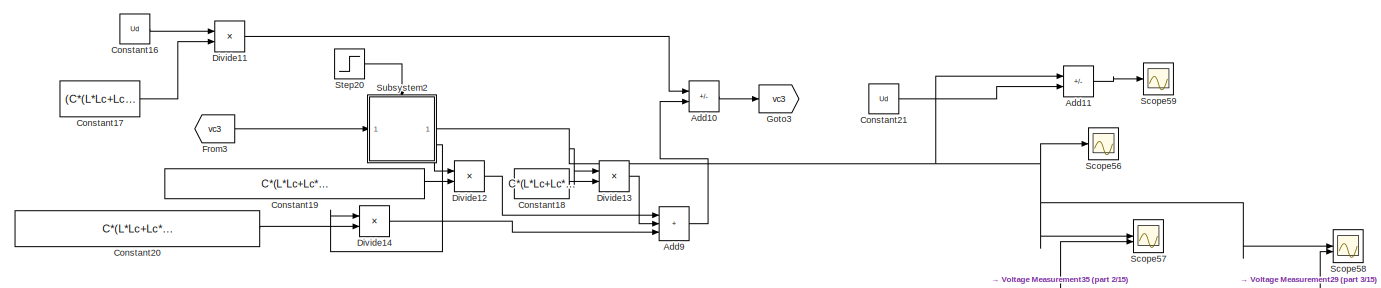
[diagram: root canvas - part 1/15, top left region]
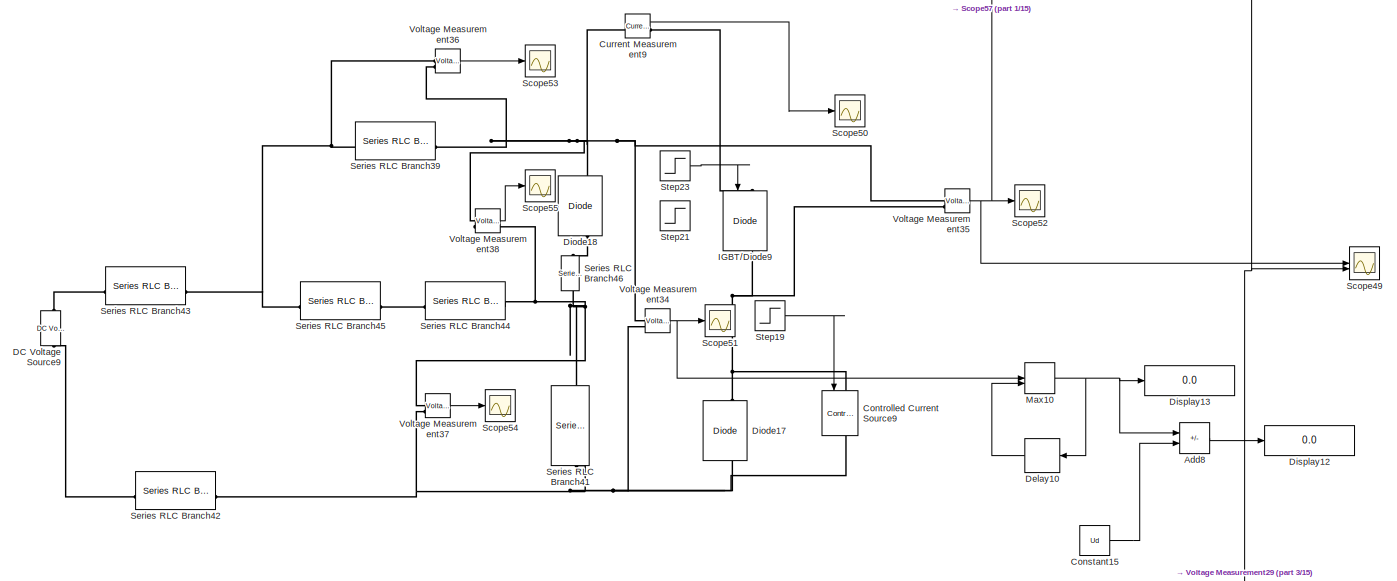
[diagram: root canvas - part 2/15, top left region]
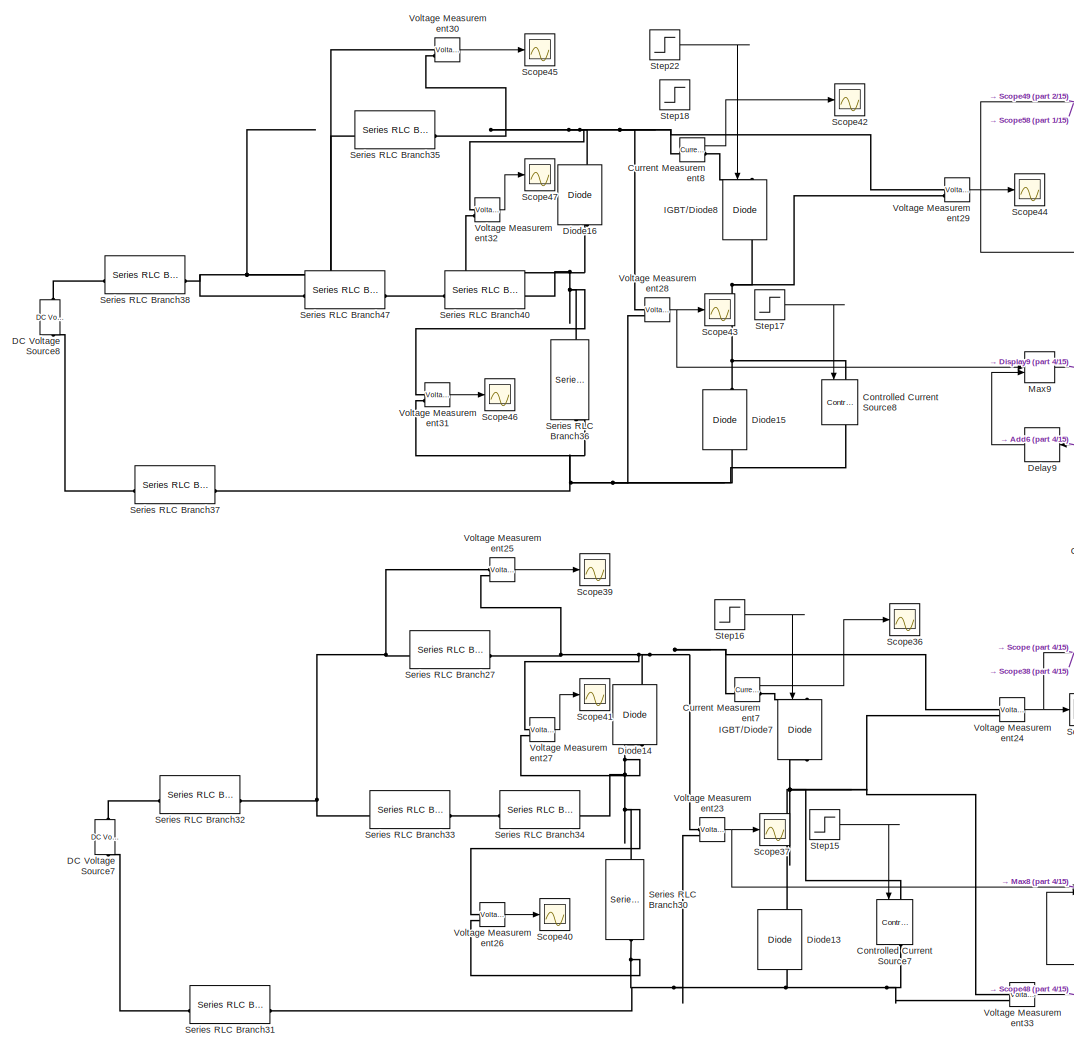
[diagram: root canvas - part 3/15, middle left region]
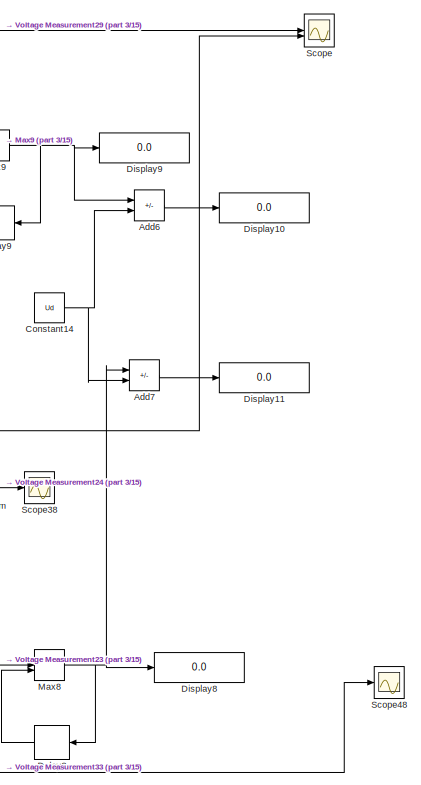
[diagram: root canvas - part 4/15, middle left region]
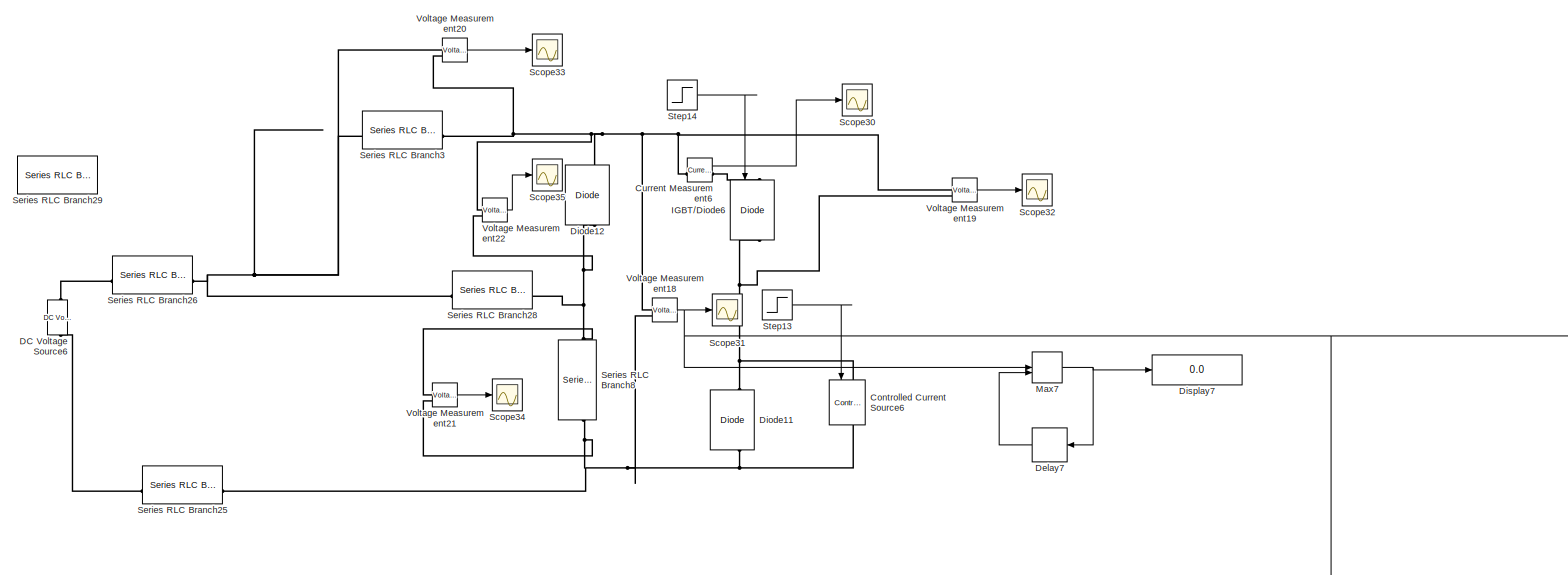
[diagram: root canvas - part 5/15, central region]
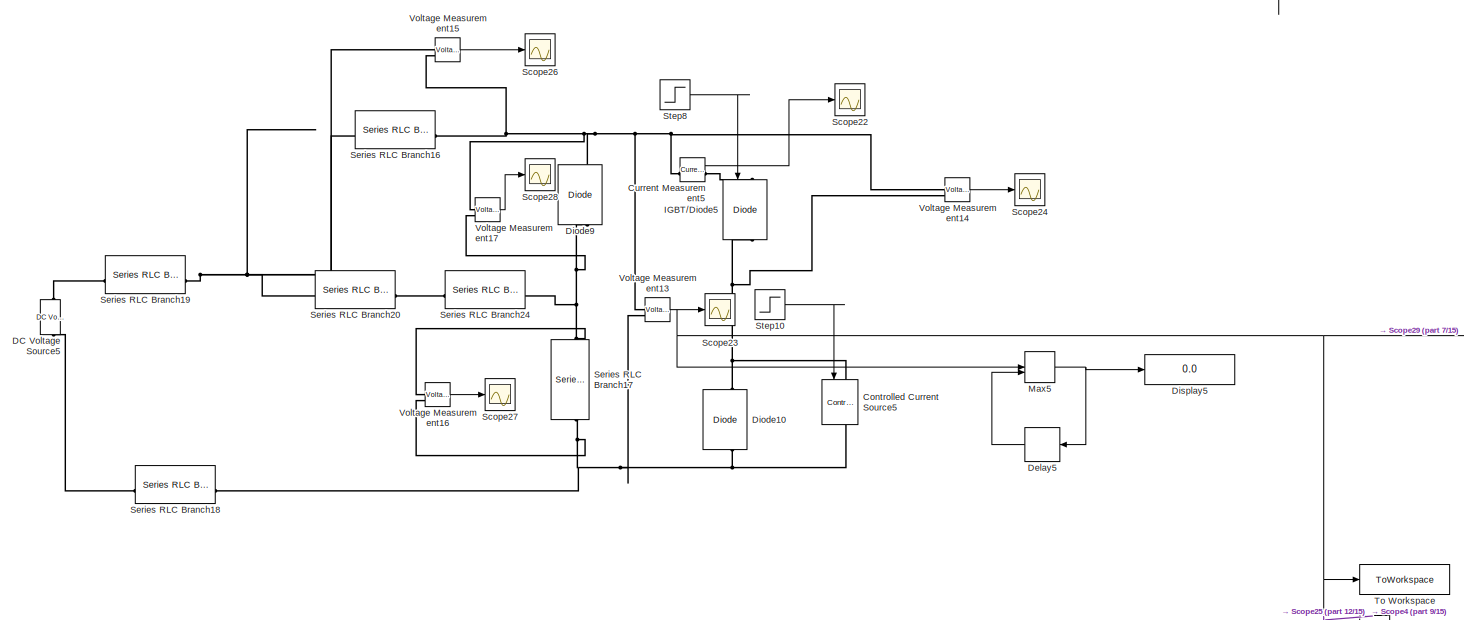
[diagram: root canvas - part 6/15, central region]
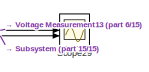
[diagram: root canvas - part 7/15, central region]
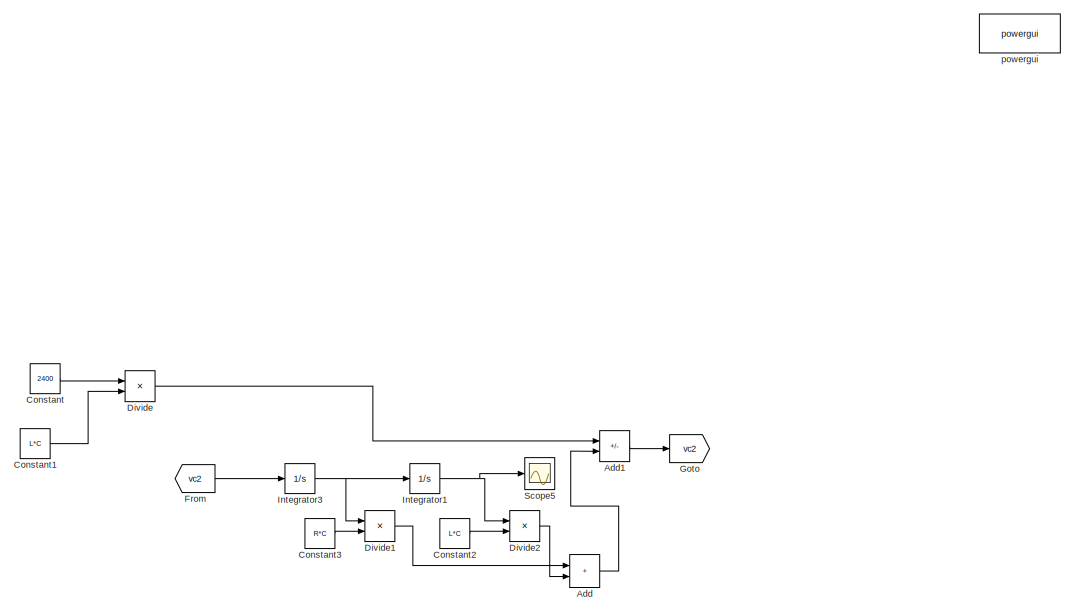
[diagram: root canvas - part 8/15, middle left region]
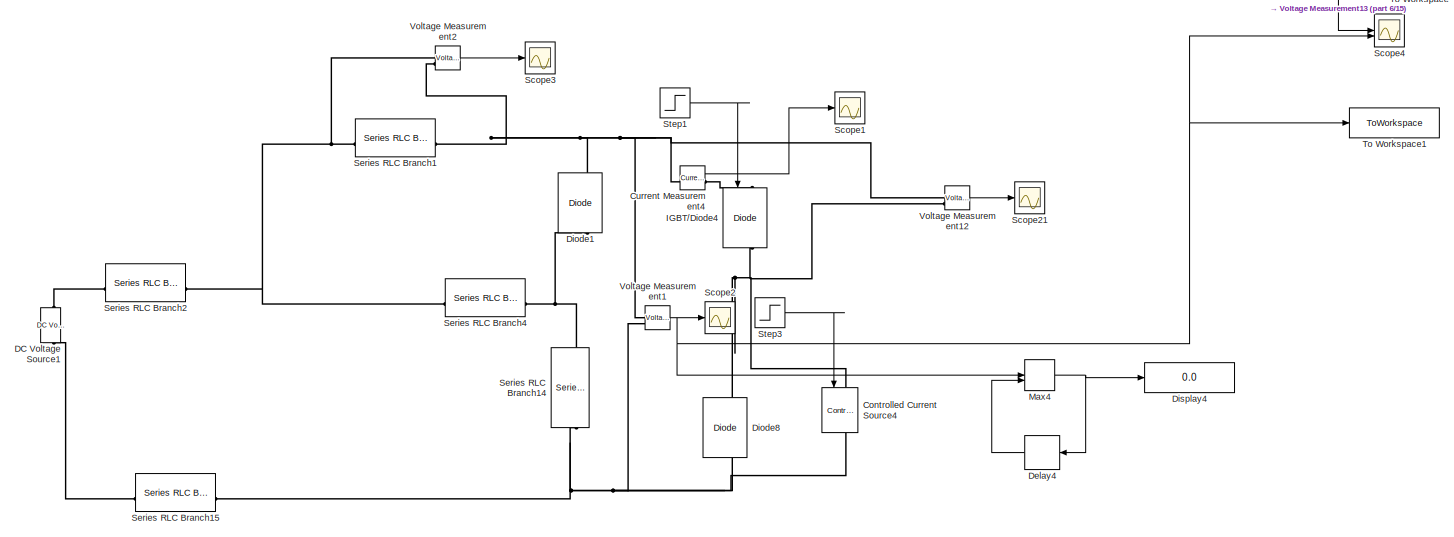
[diagram: root canvas - part 9/15, central region]
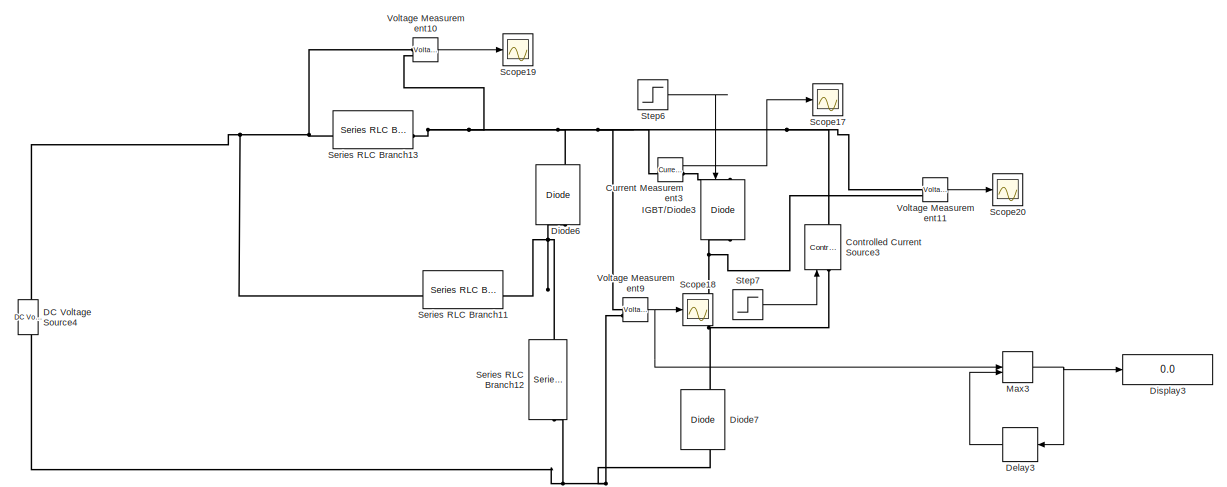
[diagram: root canvas - part 10/15, middle right region]
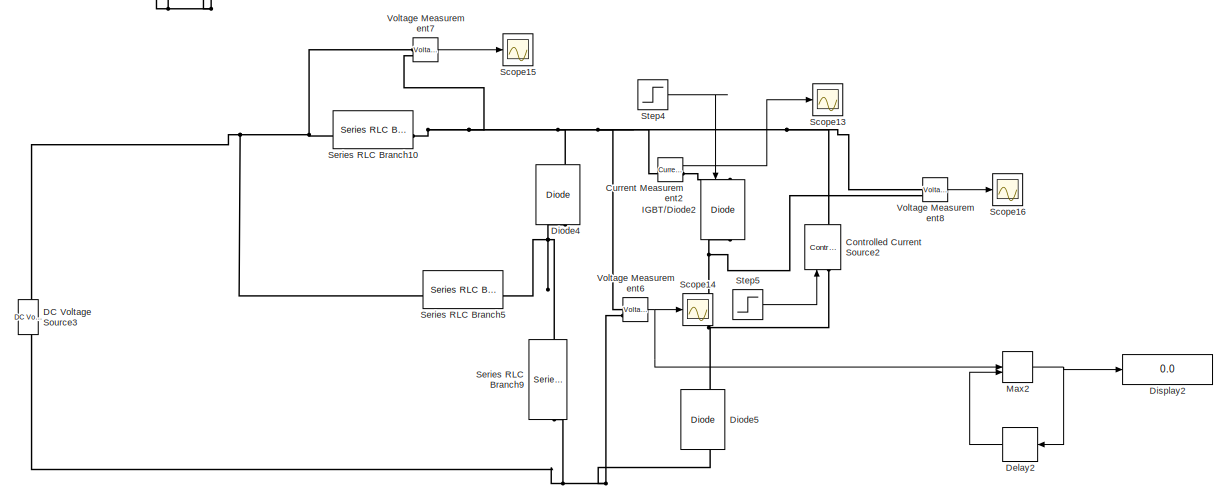
[diagram: root canvas - part 11/15, bottom right region]
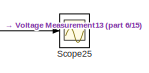
[diagram: root canvas - part 12/15, bottom center region]
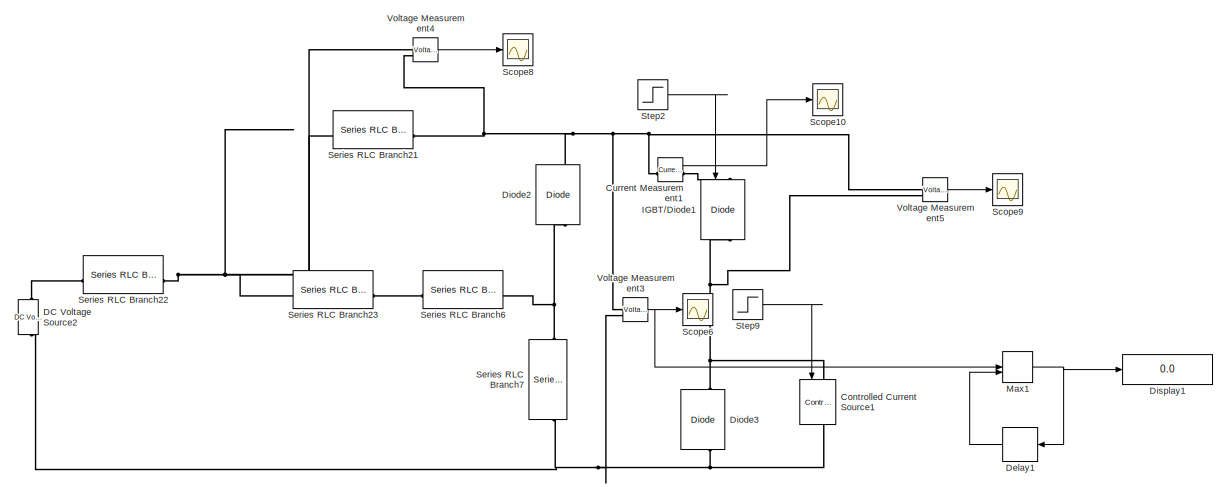
[diagram: root canvas - part 13/15, bottom center region]
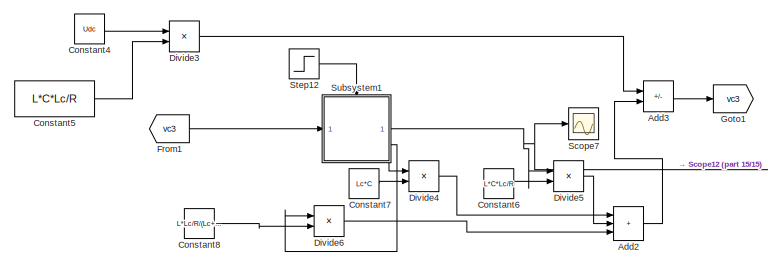
[diagram: root canvas - part 14/15, bottom left region]
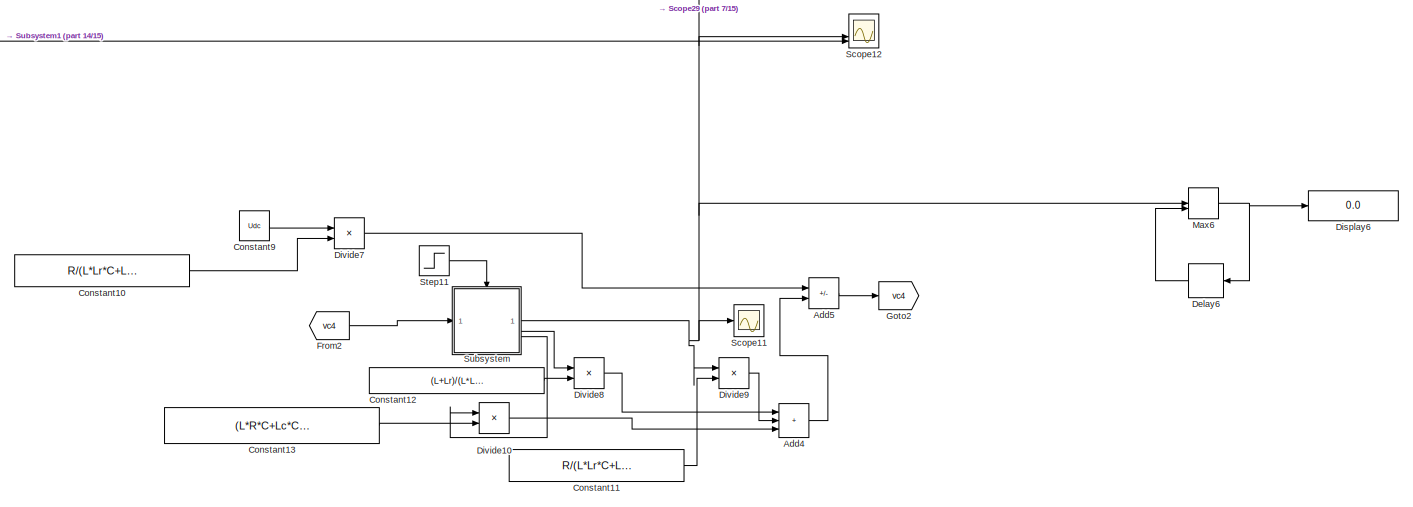
[diagram: root canvas - part 15/15, bottom center region]
MODEL slx_f829e79edec6
KIND model
CONFIG AbsTol = auto
CONFIG EnableMultiTasking = off
CONFIG FixedStep = 1e-9
CONFIG MaxStep = auto
CONFIG MinStep = auto
CONFIG RelTol = 1e-3
CONFIG SampleTimeConstraint = Unconstrained
CONFIG SolverName = FixedStepAuto
CONFIG StartTime = 0
CONFIG StopTime = 0.1e-3
BLOCK [Sum] Add
  Commented = on
  IconShape = rectangular
BLOCK [Sum] Add1
  Commented = on
  IconShape = rectangular
  Inputs = +-
BLOCK [Sum] Add10
  Commented = on
  IconShape = rectangular
  Inputs = +-
BLOCK [Sum] Add11
  Commented = on
  IconShape = rectangular
  Inputs = +-
BLOCK [Sum] Add2
  Commented = on
  IconShape = rectangular
  Inputs = +++
BLOCK [Sum] Add3
  Commented = on
  IconShape = rectangular
  Inputs = +-
BLOCK [Sum] Add4
  Commented = on
  IconShape = rectangular
  Inputs = +++
BLOCK [Sum] Add5
  Commented = on
  IconShape = rectangular
  Inputs = +-
BLOCK [Sum] Add6
  IconShape = rectangular
  Inputs = +-
BLOCK [Sum] Add7
  Commented = on
  IconShape = rectangular
  Inputs = +-
BLOCK [Sum] Add8
  IconShape = rectangular
  Inputs = +-
BLOCK [Sum] Add9
  Commented = on
  IconShape = rectangular
  Inputs = +++
BLOCK [Constant] Constant
  Commented = on
  Value = 2400
BLOCK [Constant] Constant1
  Commented = on
  Value = L*C
BLOCK [Constant] Constant10
  Commented = on
  Value = R/(L*Lr*C+L*Lc*C+Lc*Lr*C)
BLOCK [Constant] Constant11
  Commented = on
  Value = R/(L*Lr*C+L*Lc*C+Lc*Lr*C)
BLOCK [Constant] Constant12
  Commented = on
  Value = (L+Lr)/(L*Lr*C+L*Lc*C+Lc*Lr*C)
BLOCK [Constant] Constant13
  Commented = on
  Value = (L*R*C+Lc*C*R)/(L*Lr*C+L*Lc*C+Lc*Lr*C)
BLOCK [Constant] Constant14
  Value = Ud
BLOCK [Constant] Constant15
  Value = Ud
BLOCK [Constant] Constant16
  Commented = on
  Value = Ud
BLOCK [Constant] Constant17
  Commented = on
  Value = (C*(L*Lc+Lc*Ld+Lc*Lr+Lr*L+Lr*Ld))/R
BLOCK [Constant] Constant18
  Commented = on
  Value = C*(L*Lc+Lc*Ld+Lc*Lr+Lr*L+Lr*Ld)/R
BLOCK [Constant] Constant19
  Commented = on
  Value = C*(L*Lc+Lc*Ld+Lc*Lr+Lr*L+Lr*Ld)/((L+Ld+Lr))
BLOCK [Constant] Constant2
  Commented = on
  Value = L*C
BLOCK [Constant] Constant20
  Commented = on
  Value = C*(L*Lc+Lc*Ld+Lc*Lr+Lr*L+Lr*Ld)/(C*R*(Lc+L+Ld))
BLOCK [Constant] Constant21
  Commented = on
  Value = Ud
BLOCK [Constant] Constant3
  Commented = on
  Value = R*C
BLOCK [Constant] Constant4
  Commented = on
  Value = Udc
BLOCK [Constant] Constant5
  Commented = on
  Value = L*C*Lc/R
BLOCK [Constant] Constant6
  Commented = on
  Value = L*C*Lc/R
BLOCK [Constant] Constant7
  Commented = on
  Value = Lc*C
BLOCK [Constant] Constant8
  Commented = on
  Value = L*Lc/R/(Lc+L)
BLOCK [Constant] Constant9
  Commented = on
  Value = Udc
BLOCK [Reference] Controlled Current Source1  REF=spsControlledCurrentSourceLib/Controlled Current Source
  Commented = on
  LibrarySourceBlock = sps_lib/Sources/Controlled Current Source
  NameLocation = top
  SourceBlock = spsControlledCurrentSourceLib/Controlled Current Source
  SourceType = Controlled Current Source
BLOCK [Reference] Controlled Current Source2  REF=spsControlledCurrentSourceLib/Controlled Current Source
  Commented = on
  LibrarySourceBlock = sps_lib/Sources/Controlled Current Source
  SourceBlock = spsControlledCurrentSourceLib/Controlled Current Source
  SourceType = Controlled Current Source
BLOCK [Reference] Controlled Current Source3  REF=spsControlledCurrentSourceLib/Controlled Current Source
  Commented = on
  LibrarySourceBlock = sps_lib/Sources/Controlled Current Source
  SourceBlock = spsControlledCurrentSourceLib/Controlled Current Source
  SourceType = Controlled Current Source
BLOCK [Reference] Controlled Current Source4  REF=spsControlledCurrentSourceLib/Controlled Current Source
  Commented = on
  LibrarySourceBlock = sps_lib/Sources/Controlled Current Source
  NameLocation = top
  SourceBlock = spsControlledCurrentSourceLib/Controlled Current Source
  SourceType = Controlled Current Source
BLOCK [Reference] Controlled Current Source5  REF=spsControlledCurrentSourceLib/Controlled Current Source
  Commented = on
  LibrarySourceBlock = sps_lib/Sources/Controlled Current Source
  NameLocation = top
  SourceBlock = spsControlledCurrentSourceLib/Controlled Current Source
  SourceType = Controlled Current Source
BLOCK [Reference] Controlled Current Source6  REF=spsControlledCurrentSourceLib/Controlled Current Source
  Commented = on
  LibrarySourceBlock = sps_lib/Sources/Controlled Current Source
  NameLocation = top
  SourceBlock = spsControlledCurrentSourceLib/Controlled Current Source
  SourceType = Controlled Current Source
BLOCK [Reference] Controlled Current Source7  REF=spsControlledCurrentSourceLib/Controlled Current Source
  Commented = on
  LibrarySourceBlock = sps_lib/Sources/Controlled Current Source
  NameLocation = top
  SourceBlock = spsControlledCurrentSourceLib/Controlled Current Source
  SourceType = Controlled Current Source
BLOCK [Reference] Controlled Current Source8  REF=spsControlledCurrentSourceLib/Controlled Current Source
  LibrarySourceBlock = sps_lib/Sources/Controlled Current Source
  NameLocation = top
  SourceBlock = spsControlledCurrentSourceLib/Controlled Current Source
  SourceType = Controlled Current Source
BLOCK [Reference] Controlled Current Source9  REF=spsControlledCurrentSourceLib/Controlled Current Source
  LibrarySourceBlock = sps_lib/Sources/Controlled Current Source
  NameLocation = top
  SourceBlock = spsControlledCurrentSourceLib/Controlled Current Source
  SourceType = Controlled Current Source
BLOCK [Reference] Current Measurement1  REF=spsCurrentMeasurementLib/Current Measurement
  Commented = on
  LibrarySourceBlock = sps_lib/Sensors and Measurements/Current Measurement
  SourceBlock = spsCurrentMeasurementLib/Current Measurement
  SourceType = Current Measurement
  UserDataPersistent = on
BLOCK [Reference] Current Measurement2  REF=spsCurrentMeasurementLib/Current Measurement
  Commented = on
  LibrarySourceBlock = sps_lib/Sensors and Measurements/Current Measurement
  SourceBlock = spsCurrentMeasurementLib/Current Measurement
  SourceType = Current Measurement
  UserDataPersistent = on
BLOCK [Reference] Current Measurement3  REF=spsCurrentMeasurementLib/Current Measurement
  Commented = on
  LibrarySourceBlock = sps_lib/Sensors and Measurements/Current Measurement
  SourceBlock = spsCurrentMeasurementLib/Current Measurement
  SourceType = Current Measurement
  UserDataPersistent = on
BLOCK [Reference] Current Measurement4  REF=spsCurrentMeasurementLib/Current Measurement
  Commented = on
  LibrarySourceBlock = sps_lib/Sensors and Measurements/Current Measurement
  SourceBlock = spsCurrentMeasurementLib/Current Measurement
  SourceType = Current Measurement
  UserDataPersistent = on
BLOCK [Reference] Current Measurement5  REF=spsCurrentMeasurementLib/Current Measurement
  Commented = on
  LibrarySourceBlock = sps_lib/Sensors and Measurements/Current Measurement
  SourceBlock = spsCurrentMeasurementLib/Current Measurement
  SourceType = Current Measurement
  UserDataPersistent = on
BLOCK [Reference] Current Measurement6  REF=spsCurrentMeasurementLib/Current Measurement
  Commented = on
  LibrarySourceBlock = sps_lib/Sensors and Measurements/Current Measurement
  SourceBlock = spsCurrentMeasurementLib/Current Measurement
  SourceType = Current Measurement
  UserDataPersistent = on
BLOCK [Reference] Current Measurement7  REF=spsCurrentMeasurementLib/Current Measurement
  Commented = on
  LibrarySourceBlock = sps_lib/Sensors and Measurements/Current Measurement
  SourceBlock = spsCurrentMeasurementLib/Current Measurement
  SourceType = Current Measurement
  UserDataPersistent = on
BLOCK [Reference] Current Measurement8  REF=spsCurrentMeasurementLib/Current Measurement
  LibrarySourceBlock = sps_lib/Sensors and Measurements/Current Measurement
  SourceBlock = spsCurrentMeasurementLib/Current Measurement
  SourceType = Current Measurement
  UserDataPersistent = on
BLOCK [Reference] Current Measurement9  REF=spsCurrentMeasurementLib/Current Measurement
  LibrarySourceBlock = sps_lib/Sensors and Measurements/Current Measurement
  SourceBlock = spsCurrentMeasurementLib/Current Measurement
  SourceType = Current Measurement
  UserDataPersistent = on
BLOCK [Reference] DC Voltage Source1  REF=spsDCVoltageSourceLib/DC Voltage Source
  Commented = on
  LibrarySourceBlock = sps_lib/Sources/DC Voltage Source
  SourceBlock = spsDCVoltageSourceLib/DC Voltage Source
  SourceType = DC Voltage Source
BLOCK [Reference] DC Voltage Source2  REF=spsDCVoltageSourceLib/DC Voltage Source
  Commented = on
  LibrarySourceBlock = sps_lib/Sources/DC Voltage Source
  SourceBlock = spsDCVoltageSourceLib/DC Voltage Source
  SourceType = DC Voltage Source
BLOCK [Reference] DC Voltage Source3  REF=spsDCVoltageSourceLib/DC Voltage Source
  Commented = on
  LibrarySourceBlock = sps_lib/Sources/DC Voltage Source
  SourceBlock = spsDCVoltageSourceLib/DC Voltage Source
  SourceType = DC Voltage Source
BLOCK [Reference] DC Voltage Source4  REF=spsDCVoltageSourceLib/DC Voltage Source
  Commented = on
  LibrarySourceBlock = sps_lib/Sources/DC Voltage Source
  SourceBlock = spsDCVoltageSourceLib/DC Voltage Source
  SourceType = DC Voltage Source
BLOCK [Reference] DC Voltage Source5  REF=spsDCVoltageSourceLib/DC Voltage Source
  Commented = on
  LibrarySourceBlock = sps_lib/Sources/DC Voltage Source
  SourceBlock = spsDCVoltageSourceLib/DC Voltage Source
  SourceType = DC Voltage Source
BLOCK [Reference] DC Voltage Source6  REF=spsDCVoltageSourceLib/DC Voltage Source
  Commented = on
  LibrarySourceBlock = sps_lib/Sources/DC Voltage Source
  SourceBlock = spsDCVoltageSourceLib/DC Voltage Source
  SourceType = DC Voltage Source
BLOCK [Reference] DC Voltage Source7  REF=spsDCVoltageSourceLib/DC Voltage Source
  Commented = on
  LibrarySourceBlock = sps_lib/Sources/DC Voltage Source
  SourceBlock = spsDCVoltageSourceLib/DC Voltage Source
  SourceType = DC Voltage Source
BLOCK [Reference] DC Voltage Source8  REF=spsDCVoltageSourceLib/DC Voltage Source
  LibrarySourceBlock = sps_lib/Sources/DC Voltage Source
  SourceBlock = spsDCVoltageSourceLib/DC Voltage Source
  SourceType = DC Voltage Source
BLOCK [Reference] DC Voltage Source9  REF=spsDCVoltageSourceLib/DC Voltage Source
  LibrarySourceBlock = sps_lib/Sources/DC Voltage Source
  SourceBlock = spsDCVoltageSourceLib/DC Voltage Source
  SourceType = DC Voltage Source
BLOCK [Delay] Delay1
  Commented = on
  DelayLength = 1
  InputPortMap = u0
  NameLocation = top
BLOCK [Delay] Delay10
  DelayLength = 1
  InputPortMap = u0
  NameLocation = top
BLOCK [Delay] Delay2
  Commented = on
  DelayLength = 1
  InputPortMap = u0
  NameLocation = top
BLOCK [Delay] Delay3
  Commented = on
  DelayLength = 1
  InputPortMap = u0
  NameLocation = top
BLOCK [Delay] Delay4
  Commented = on
  DelayLength = 1
  InputPortMap = u0
  NameLocation = top
BLOCK [Delay] Delay5
  Commented = on
  DelayLength = 1
  InputPortMap = u0
  NameLocation = top
BLOCK [Delay] Delay6
  Commented = on
  DelayLength = 1
  InputPortMap = u0
  NameLocation = top
BLOCK [Delay] Delay7
  Commented = on
  DelayLength = 1
  InputPortMap = u0
  NameLocation = top
BLOCK [Delay] Delay8
  Commented = on
  DelayLength = 1
  InputPortMap = u0
  NameLocation = top
BLOCK [Delay] Delay9
  DelayLength = 1
  InputPortMap = u0
  NameLocation = top
BLOCK [Reference] Diode1  REF=spsDiodeLib/Diode
  Commented = on
  LibrarySourceBlock = sps_lib/Power Electronics/Diode
  NameLocation = left
  SourceBlock = spsDiodeLib/Diode
  SourceType = Diode
BLOCK [Reference] Diode10  REF=spsDiodeLib/Diode
  Commented = on
  LibrarySourceBlock = sps_lib/Power Electronics/Diode
  NameLocation = right
  SourceBlock = spsDiodeLib/Diode
  SourceType = Diode
BLOCK [Reference] Diode11  REF=spsDiodeLib/Diode
  Commented = on
  LibrarySourceBlock = sps_lib/Power Electronics/Diode
  NameLocation = right
  SourceBlock = spsDiodeLib/Diode
  SourceType = Diode
BLOCK [Reference] Diode12  REF=spsDiodeLib/Diode
  Commented = on
  LibrarySourceBlock = sps_lib/Power Electronics/Diode
  NameLocation = left
  SourceBlock = spsDiodeLib/Diode
  SourceType = Diode
BLOCK [Reference] Diode13  REF=spsDiodeLib/Diode
  Commented = on
  LibrarySourceBlock = sps_lib/Power Electronics/Diode
  NameLocation = right
  SourceBlock = spsDiodeLib/Diode
  SourceType = Diode
BLOCK [Reference] Diode14  REF=spsDiodeLib/Diode
  Commented = on
  LibrarySourceBlock = sps_lib/Power Electronics/Diode
  NameLocation = left
  SourceBlock = spsDiodeLib/Diode
  SourceType = Diode
BLOCK [Reference] Diode15  REF=spsDiodeLib/Diode
  LibrarySourceBlock = sps_lib/Power Electronics/Diode
  NameLocation = right
  SourceBlock = spsDiodeLib/Diode
  SourceType = Diode
BLOCK [Reference] Diode16  REF=spsDiodeLib/Diode
  LibrarySourceBlock = sps_lib/Power Electronics/Diode
  NameLocation = left
  SourceBlock = spsDiodeLib/Diode
  SourceType = Diode
BLOCK [Reference] Diode17  REF=spsDiodeLib/Diode
  LibrarySourceBlock = sps_lib/Power Electronics/Diode
  NameLocation = right
  SourceBlock = spsDiodeLib/Diode
  SourceType = Diode
BLOCK [Reference] Diode18  REF=spsDiodeLib/Diode
  LibrarySourceBlock = sps_lib/Power Electronics/Diode
  NameLocation = left
  SourceBlock = spsDiodeLib/Diode
  SourceType = Diode
BLOCK [Reference] Diode2  REF=spsDiodeLib/Diode
  Commented = on
  LibrarySourceBlock = sps_lib/Power Electronics/Diode
  NameLocation = left
  SourceBlock = spsDiodeLib/Diode
  SourceType = Diode
BLOCK [Reference] Diode3  REF=spsDiodeLib/Diode
  Commented = on
  LibrarySourceBlock = sps_lib/Power Electronics/Diode
  NameLocation = right
  SourceBlock = spsDiodeLib/Diode
  SourceType = Diode
BLOCK [Reference] Diode4  REF=spsDiodeLib/Diode
  Commented = on
  LibrarySourceBlock = sps_lib/Power Electronics/Diode
  NameLocation = left
  SourceBlock = spsDiodeLib/Diode
  SourceType = Diode
BLOCK [Reference] Diode5  REF=spsDiodeLib/Diode
  Commented = on
  LibrarySourceBlock = sps_lib/Power Electronics/Diode
  NameLocation = right
  SourceBlock = spsDiodeLib/Diode
  SourceType = Diode
BLOCK [Reference] Diode6  REF=spsDiodeLib/Diode
  Commented = on
  LibrarySourceBlock = sps_lib/Power Electronics/Diode
  NameLocation = left
  SourceBlock = spsDiodeLib/Diode
  SourceType = Diode
BLOCK [Reference] Diode7  REF=spsDiodeLib/Diode
  Commented = on
  LibrarySourceBlock = sps_lib/Power Electronics/Diode
  NameLocation = right
  SourceBlock = spsDiodeLib/Diode
  SourceType = Diode
BLOCK [Reference] Diode8  REF=spsDiodeLib/Diode
  Commented = on
  LibrarySourceBlock = sps_lib/Power Electronics/Diode
  NameLocation = right
  SourceBlock = spsDiodeLib/Diode
  SourceType = Diode
BLOCK [Reference] Diode9  REF=spsDiodeLib/Diode
  Commented = on
  LibrarySourceBlock = sps_lib/Power Electronics/Diode
  NameLocation = left
  SourceBlock = spsDiodeLib/Diode
  SourceType = Diode
BLOCK [Display] Display1
  Commented = on
  Decimation = 1
BLOCK [Display] Display10
  Decimation = 1
BLOCK [Display] Display11
  Commented = on
  Decimation = 1
BLOCK [Display] Display12
  Decimation = 1
BLOCK [Display] Display13
  Decimation = 1
BLOCK [Display] Display2
  Commented = on
  Decimation = 1
BLOCK [Display] Display3
  Commented = on
  Decimation = 1
BLOCK [Display] Display4
  Commented = on
  Decimation = 1
BLOCK [Display] Display5
  Commented = on
  Decimation = 1
BLOCK [Display] Display6
  Commented = on
  Decimation = 1
BLOCK [Display] Display7
  Commented = on
  Decimation = 1
BLOCK [Display] Display8
  Commented = on
  Decimation = 1
BLOCK [Display] Display9
  Decimation = 1
BLOCK [Product] Divide
  Commented = on
  Inputs = */
BLOCK [Product] Divide1
  Commented = on
  Inputs = */
BLOCK [Product] Divide10
  Commented = on
  Inputs = **
BLOCK [Product] Divide11
  Commented = on
  Inputs = */
BLOCK [Product] Divide12
  Commented = on
  Inputs = */
BLOCK [Product] Divide13
  Commented = on
  Inputs = */
BLOCK [Product] Divide14
  Commented = on
  Inputs = */
BLOCK [Product] Divide2
  Commented = on
  Inputs = */
BLOCK [Product] Divide3
  Commented = on
  Inputs = */
BLOCK [Product] Divide4
  Commented = on
  Inputs = */
BLOCK [Product] Divide5
  Commented = on
  Inputs = */
BLOCK [Product] Divide6
  Commented = on
  Inputs = */
BLOCK [Product] Divide7
  Commented = on
  Inputs = **
BLOCK [Product] Divide8
  Commented = on
  Inputs = **
BLOCK [Product] Divide9
  Commented = on
  Inputs = **
BLOCK [From] From
  Commented = on
  GotoTag = vc2
BLOCK [From] From1
  Commented = on
  GotoTag = vc3
BLOCK [From] From2
  Commented = on
  GotoTag = vc4
BLOCK [From] From3
  Commented = on
  GotoTag = vc3
BLOCK [Goto] Goto
  Commented = on
  GotoTag = vc2
BLOCK [Goto] Goto1
  Commented = on
  GotoTag = vc3
BLOCK [Goto] Goto2
  Commented = on
  GotoTag = vc4
BLOCK [Goto] Goto3
  Commented = on
  GotoTag = vc3
BLOCK [Reference] IGBT//Diode1  REF=spsIGBTDiodeLib/IGBT//Diode
  Commented = on
  LibrarySourceBlock = sps_lib/Power Electronics/IGBT//Diode
  NameLocation = left
  SourceBlock = spsIGBTDiodeLib/IGBT//Diode
  SourceType = IGBT/Diode
BLOCK [Reference] IGBT//Diode2  REF=spsIGBTDiodeLib/IGBT//Diode
  Commented = on
  LibrarySourceBlock = sps_lib/Power Electronics/IGBT//Diode
  NameLocation = left
  SourceBlock = spsIGBTDiodeLib/IGBT//Diode
  SourceType = IGBT/Diode
BLOCK [Reference] IGBT//Diode3  REF=spsIGBTDiodeLib/IGBT//Diode
  Commented = on
  LibrarySourceBlock = sps_lib/Power Electronics/IGBT//Diode
  NameLocation = left
  SourceBlock = spsIGBTDiodeLib/IGBT//Diode
  SourceType = IGBT/Diode
BLOCK [Reference] IGBT//Diode4  REF=spsIGBTDiodeLib/IGBT//Diode
  Commented = on
  LibrarySourceBlock = sps_lib/Power Electronics/IGBT//Diode
  NameLocation = left
  SourceBlock = spsIGBTDiodeLib/IGBT//Diode
  SourceType = IGBT/Diode
BLOCK [Reference] IGBT//Diode5  REF=spsIGBTDiodeLib/IGBT//Diode
  Commented = on
  LibrarySourceBlock = sps_lib/Power Electronics/IGBT//Diode
  NameLocation = left
  SourceBlock = spsIGBTDiodeLib/IGBT//Diode
  SourceType = IGBT/Diode
BLOCK [Reference] IGBT//Diode6  REF=spsIGBTDiodeLib/IGBT//Diode
  Commented = on
  LibrarySourceBlock = sps_lib/Power Electronics/IGBT//Diode
  NameLocation = left
  SourceBlock = spsIGBTDiodeLib/IGBT//Diode
  SourceType = IGBT/Diode
BLOCK [Reference] IGBT//Diode7  REF=spsIGBTDiodeLib/IGBT//Diode
  Commented = on
  LibrarySourceBlock = sps_lib/Power Electronics/IGBT//Diode
  NameLocation = left
  SourceBlock = spsIGBTDiodeLib/IGBT//Diode
  SourceType = IGBT/Diode
BLOCK [Reference] IGBT//Diode8  REF=spsIGBTDiodeLib/IGBT//Diode
  LibrarySourceBlock = sps_lib/Power Electronics/IGBT//Diode
  NameLocation = left
  SourceBlock = spsIGBTDiodeLib/IGBT//Diode
  SourceType = IGBT/Diode
BLOCK [Reference] IGBT//Diode9  REF=spsIGBTDiodeLib/IGBT//Diode
  LibrarySourceBlock = sps_lib/Power Electronics/IGBT//Diode
  NameLocation = left
  SourceBlock = spsIGBTDiodeLib/IGBT//Diode
  SourceType = IGBT/Diode
BLOCK [Integrator] Integrator1
  Commented = on
  InitialCondition = 2400
BLOCK [Integrator] Integrator3
  Commented = on
  InitialCondition = 1750/C
BLOCK [MinMax] Max1
  Commented = on
  Function = max
  Inputs = 2
BLOCK [MinMax] Max10
  Function = max
  Inputs = 2
BLOCK [MinMax] Max2
  Commented = on
  Function = max
  Inputs = 2
BLOCK [MinMax] Max3
  Commented = on
  Function = max
  Inputs = 2
BLOCK [MinMax] Max4
  Commented = on
  Function = max
  Inputs = 2
BLOCK [MinMax] Max5
  Commented = on
  Function = max
  Inputs = 2
BLOCK [MinMax] Max6
  Commented = on
  Function = max
  Inputs = 2
BLOCK [MinMax] Max7
  Commented = on
  Function = max
  Inputs = 2
BLOCK [MinMax] Max8
  Commented = on
  Function = max
  Inputs = 2
BLOCK [MinMax] Max9
  Function = max
  Inputs = 2
BLOCK [Scope] Scope
  Floating = off
  NumInputPorts = 2
  ScopeSpecificationString = Simulink.scopes.TimeScopeBlockCfg('CurrentConfiguration', extmgr.ConfigurationSet(extmgr.Configuration('Core','General UI',true),extmgr.Configuration('Core','Source UI',true),extmgr.Configuration('Sources','WiredSimulink',true,'DataLoggingVariableName','ScopeData14'),extmgr.Configuration('Visuals','Time Domain',true,'SerializedDisplays',{struct('MinYLimReal','-400.57106','MaxYLimReal','3605.16082'...<+2626ch>
BLOCK [Scope] Scope1
  Commented = on
  Floating = off
  NumInputPorts = 1
  ScopeSpecificationString = Simulink.scopes.TimeScopeBlockCfg('CurrentConfiguration', extmgr.ConfigurationSet(extmgr.Configuration('Core','General UI',true),extmgr.Configuration('Core','Source UI',true),extmgr.Configuration('Sources','WiredSimulink',true,'DataLoggingVariableName','ScopeData9'),extmgr.Configuration('Visuals','Time Domain',true,'SerializedDisplays',{struct('MinYLimReal','-218.72792','MaxYLimReal','1968.7915','...<+1767ch>
BLOCK [Scope] Scope10
  Commented = on
  Floating = off
  NumInputPorts = 1
  ScopeSpecificationString = Simulink.scopes.TimeScopeBlockCfg('CurrentConfiguration', extmgr.ConfigurationSet(extmgr.Configuration('Core','General UI',true),extmgr.Configuration('Core','Source UI',true),extmgr.Configuration('Sources','WiredSimulink',true,'DataLoggingVariableName','ScopeData14'),extmgr.Configuration('Visuals','Time Domain',true,'SerializedDisplays',{struct('MinYLimReal','-218.72792','MaxYLimReal','1968.7915',...<+1768ch>
BLOCK [Scope] Scope11
  Commented = on
  Floating = off
  NumInputPorts = 1
  ScopeSpecificationString = Simulink.scopes.TimeScopeBlockCfg('CurrentConfiguration', extmgr.ConfigurationSet(extmgr.Configuration('Core','General UI',true),extmgr.Configuration('Core','Source UI',true),extmgr.Configuration('Sources','WiredSimulink',true,'DataLoggingVariableName','ScopeData5'),extmgr.Configuration('Visuals','Time Domain',true,'SerializedDisplays',{struct('MinYLimReal','1878.35015','MaxYLimReal','3463.11963',...<+1692ch>
BLOCK [Scope] Scope12
  Commented = on
  Floating = off
  NumInputPorts = 4
  ScopeSpecificationString = Simulink.scopes.TimeScopeBlockCfg('CurrentConfiguration', extmgr.ConfigurationSet(extmgr.Configuration('Core','General UI',true),extmgr.Configuration('Core','Source UI',true),extmgr.Configuration('Sources','WiredSimulink',true,'DataLoggingVariableName','ScopeData6'),extmgr.Configuration('Visuals','Time Domain',true,'SerializedDisplays',{struct('MinYLimReal','2229.36071','MaxYLimReal','2844.57217',...<+1606ch>
BLOCK [Scope] Scope13
  Commented = on
  Floating = off
  NumInputPorts = 1
  ScopeSpecificationString = Simulink.scopes.TimeScopeBlockCfg('CurrentConfiguration', extmgr.ConfigurationSet(extmgr.Configuration('Core','General UI',true),extmgr.Configuration('Core','Source UI',true),extmgr.Configuration('Sources','WiredSimulink',true,'DataLoggingVariableName','ScopeData1'),extmgr.Configuration('Visuals','Time Domain',true,'SerializedDisplays',{struct('MinYLimReal','-218.72792','MaxYLimReal','1968.7915','...<+1768ch>
BLOCK [Scope] Scope14
  Commented = on
  Floating = off
  NumInputPorts = 1
  ScopeSpecificationString = Simulink.scopes.TimeScopeBlockCfg('CurrentConfiguration', extmgr.ConfigurationSet(extmgr.Configuration('Core','General UI',true),extmgr.Configuration('Core','Source UI',true),extmgr.Configuration('Sources','WiredSimulink',true,'DataLoggingVariableName','ScopeData2'),extmgr.Configuration('Visuals','Time Domain',true,'SerializedDisplays',{struct('MinYLimReal','2311.25397','MaxYLimReal','3198.48797',...<+1776ch>
BLOCK [Scope] Scope15
  Commented = on
  Floating = off
  NumInputPorts = 1
  ScopeSpecificationString = Simulink.scopes.TimeScopeBlockCfg('CurrentConfiguration', extmgr.ConfigurationSet(extmgr.Configuration('Core','General UI',true),extmgr.Configuration('Core','Source UI',true),extmgr.Configuration('Sources','WiredSimulink',true,'DataLoggingVariableName','ScopeData3'),extmgr.Configuration('Visuals','Time Domain',true,'SerializedDisplays',{struct('MinYLimReal','-767.49397','MaxYLimReal','201.9794','Y...<+1736ch>
BLOCK [Scope] Scope16
  Commented = on
  Floating = off
  NumInputPorts = 1
  ScopeSpecificationString = Simulink.scopes.TimeScopeBlockCfg('CurrentConfiguration', extmgr.ConfigurationSet(extmgr.Configuration('Core','General UI',true),extmgr.Configuration('Core','Source UI',true),extmgr.Configuration('Sources','WiredSimulink',true,'DataLoggingVariableName','ScopeData4'),extmgr.Configuration('Visuals','Time Domain',true,'SerializedDisplays',{struct('MinYLimReal','-388.27089','MaxYLimReal','3501.26323',...<+1476ch>
BLOCK [Scope] Scope17
  Commented = on
  Floating = off
  NumInputPorts = 1
  ScopeSpecificationString = Simulink.scopes.TimeScopeBlockCfg('CurrentConfiguration', extmgr.ConfigurationSet(extmgr.Configuration('Core','General UI',true),extmgr.Configuration('Core','Source UI',true),extmgr.Configuration('Sources','WiredSimulink',true,'DataLoggingVariableName','ScopeData5'),extmgr.Configuration('Visuals','Time Domain',true,'SerializedDisplays',{struct('MinYLimReal','-218.72792','MaxYLimReal','1968.7915','...<+1768ch>
BLOCK [Scope] Scope18
  Commented = on
  Floating = off
  NumInputPorts = 1
  ScopeSpecificationString = Simulink.scopes.TimeScopeBlockCfg('CurrentConfiguration', extmgr.ConfigurationSet(extmgr.Configuration('Core','General UI',true),extmgr.Configuration('Core','Source UI',true),extmgr.Configuration('Sources','WiredSimulink',true,'DataLoggingVariableName','ScopeData6'),extmgr.Configuration('Visuals','Time Domain',true,'SerializedDisplays',{struct('MinYLimReal','2311.25397','MaxYLimReal','3198.48797',...<+1776ch>
BLOCK [Scope] Scope19
  Commented = on
  Floating = off
  NumInputPorts = 1
  ScopeSpecificationString = Simulink.scopes.TimeScopeBlockCfg('CurrentConfiguration', extmgr.ConfigurationSet(extmgr.Configuration('Core','General UI',true),extmgr.Configuration('Core','Source UI',true),extmgr.Configuration('Sources','WiredSimulink',true,'DataLoggingVariableName','ScopeData7'),extmgr.Configuration('Visuals','Time Domain',true,'SerializedDisplays',{struct('MinYLimReal','-767.49397','MaxYLimReal','201.9794','Y...<+1736ch>
BLOCK [Scope] Scope2
  Commented = on
  Floating = off
  NumInputPorts = 1
  ScopeSpecificationString = Simulink.scopes.TimeScopeBlockCfg('CurrentConfiguration', extmgr.ConfigurationSet(extmgr.Configuration('Core','General UI',true),extmgr.Configuration('Core','Source UI',true),extmgr.Configuration('Sources','WiredSimulink',true,'DataLoggingVariableName','ScopeData10'),extmgr.Configuration('Visuals','Time Domain',true,'SerializedDisplays',{struct('MinYLimReal','2290.53001','MaxYLimReal','3384.85296'...<+1777ch>
BLOCK [Scope] Scope20
  Commented = on
  Floating = off
  NumInputPorts = 1
  ScopeSpecificationString = Simulink.scopes.TimeScopeBlockCfg('CurrentConfiguration', extmgr.ConfigurationSet(extmgr.Configuration('Core','General UI',true),extmgr.Configuration('Core','Source UI',true),extmgr.Configuration('Sources','WiredSimulink',true,'DataLoggingVariableName','ScopeData8'),extmgr.Configuration('Visuals','Time Domain',true,'SerializedDisplays',{struct('MinYLimReal','-388.27089','MaxYLimReal','3501.26323',...<+1476ch>
BLOCK [Scope] Scope21
  Commented = on
  Floating = off
  NumInputPorts = 1
  ScopeSpecificationString = Simulink.scopes.TimeScopeBlockCfg('CurrentConfiguration', extmgr.ConfigurationSet(extmgr.Configuration('Core','General UI',true),extmgr.Configuration('Core','Source UI',true),extmgr.Configuration('Sources','WiredSimulink',true,'DataLoggingVariableName','ScopeData11'),extmgr.Configuration('Visuals','Time Domain',true,'SerializedDisplays',{struct('MinYLimReal','-388.27089','MaxYLimReal','3501.26323'...<+1475ch>
BLOCK [Scope] Scope22
  Commented = on
  Floating = off
  NumInputPorts = 1
  ScopeSpecificationString = Simulink.scopes.TimeScopeBlockCfg('CurrentConfiguration', extmgr.ConfigurationSet(extmgr.Configuration('Core','General UI',true),extmgr.Configuration('Core','Source UI',true),extmgr.Configuration('Sources','WiredSimulink',true,'DataLoggingVariableName','ScopeData18'),extmgr.Configuration('Visuals','Time Domain',true,'SerializedDisplays',{struct('MinYLimReal','-500.01998','MaxYLimReal','4500.41339'...<+1773ch>
BLOCK [Scope] Scope23
  Commented = on
  Floating = off
  NumInputPorts = 1
  ScopeSpecificationString = Simulink.scopes.TimeScopeBlockCfg('CurrentConfiguration', extmgr.ConfigurationSet(extmgr.Configuration('Core','General UI',true),extmgr.Configuration('Core','Source UI',true),extmgr.Configuration('Sources','WiredSimulink',true,'DataLoggingVariableName','ScopeData19'),extmgr.Configuration('Visuals','Time Domain',true,'SerializedDisplays',{struct('MinYLimReal','-431.5148','MaxYLimReal','3835.75595',...<+1778ch>
BLOCK [Scope] Scope24
  Commented = on
  Floating = off
  NumInputPorts = 1
  ScopeSpecificationString = Simulink.scopes.TimeScopeBlockCfg('CurrentConfiguration', extmgr.ConfigurationSet(extmgr.Configuration('Core','General UI',true),extmgr.Configuration('Core','Source UI',true),extmgr.Configuration('Sources','WiredSimulink',true,'DataLoggingVariableName','ScopeData20'),extmgr.Configuration('Visuals','Time Domain',true,'SerializedDisplays',{struct('MinYLimReal','-426.72573','MaxYLimReal','3840.55253'...<+1699ch>
BLOCK [Scope] Scope25
  Commented = on
  Floating = off
  NumInputPorts = 3
  ScopeSpecificationString = Simulink.scopes.TimeScopeBlockCfg('CurrentConfiguration', extmgr.ConfigurationSet(extmgr.Configuration('Core','General UI',true),extmgr.Configuration('Core','Source UI',true),extmgr.Configuration('Sources','WiredSimulink',true,'DataLoggingVariableName','ScopeData13'),extmgr.Configuration('Visuals','Time Domain',true,'SerializedDisplays',{struct('MinYLimReal','-431.5148','MaxYLimReal','3835.75595',...<+2028ch>
BLOCK [Scope] Scope26
  Commented = on
  Floating = off
  NumInputPorts = 1
  ScopeSpecificationString = Simulink.scopes.TimeScopeBlockCfg('CurrentConfiguration', extmgr.ConfigurationSet(extmgr.Configuration('Core','General UI',true),extmgr.Configuration('Core','Source UI',true),extmgr.Configuration('Sources','WiredSimulink',true,'DataLoggingVariableName','ScopeData21'),extmgr.Configuration('Visuals','Time Domain',true,'SerializedDisplays',{struct('MinYLimReal','-1174.23487','MaxYLimReal','2657.93693...<+1748ch>
BLOCK [Scope] Scope27
  Commented = on
  Floating = off
  NumInputPorts = 1
  ScopeSpecificationString = Simulink.scopes.TimeScopeBlockCfg('CurrentConfiguration', extmgr.ConfigurationSet(extmgr.Configuration('Core','General UI',true),extmgr.Configuration('Core','Source UI',true),extmgr.Configuration('Sources','WiredSimulink',true,'DataLoggingVariableName','ScopeData1'),extmgr.Configuration('Visuals','Time Domain',true,'SerializedDisplays',{struct('MinYLimReal','-431.5148','MaxYLimReal','3835.75595','...<+1777ch>
BLOCK [Scope] Scope28
  Commented = on
  Floating = off
  NumInputPorts = 1
  ScopeSpecificationString = Simulink.scopes.TimeScopeBlockCfg('CurrentConfiguration', extmgr.ConfigurationSet(extmgr.Configuration('Core','General UI',true),extmgr.Configuration('Core','Source UI',true),extmgr.Configuration('Sources','WiredSimulink',true,'DataLoggingVariableName','ScopeData2'),extmgr.Configuration('Visuals','Time Domain',true,'SerializedDisplays',{struct('MinYLimReal','-2705.98606','MaxYLimReal','305.99854',...<+1745ch>
BLOCK [Scope] Scope29
  Commented = on
  Floating = off
  NumInputPorts = 2
  ScopeSpecificationString = Simulink.scopes.TimeScopeBlockCfg('CurrentConfiguration', extmgr.ConfigurationSet(extmgr.Configuration('Core','General UI',true),extmgr.Configuration('Core','Source UI',true),extmgr.Configuration('Sources','WiredSimulink',true,'DataLoggingVariableName','ScopeData3'),extmgr.Configuration('Visuals','Time Domain',true,'SerializedDisplays',{struct('MinYLimReal','2243.35957','MaxYLimReal','3287.40606',...<+1972ch>
BLOCK [Scope] Scope3
  Commented = on
  Floating = off
  NumInputPorts = 1
  ScopeSpecificationString = Simulink.scopes.TimeScopeBlockCfg('CurrentConfiguration', extmgr.ConfigurationSet(extmgr.Configuration('Core','General UI',true),extmgr.Configuration('Core','Source UI',true),extmgr.Configuration('Sources','WiredSimulink',true,'DataLoggingVariableName','ScopeData12'),extmgr.Configuration('Visuals','Time Domain',true,'SerializedDisplays',{struct('MinYLimReal','-767.49397','MaxYLimReal','201.9794','...<+1737ch>
BLOCK [Scope] Scope30
  Commented = on
  Floating = off
  NumInputPorts = 1
  ScopeSpecificationString = Simulink.scopes.TimeScopeBlockCfg('CurrentConfiguration', extmgr.ConfigurationSet(extmgr.Configuration('Core','General UI',true),extmgr.Configuration('Core','Source UI',true),extmgr.Configuration('Sources','WiredSimulink',true,'DataLoggingVariableName','ScopeData1'),extmgr.Configuration('Visuals','Time Domain',true,'SerializedDisplays',{struct('MinYLimReal','-500.01998','MaxYLimReal','4500.41339',...<+1772ch>
BLOCK [Scope] Scope31
  Commented = on
  Floating = off
  NumInputPorts = 1
  ScopeSpecificationString = Simulink.scopes.TimeScopeBlockCfg('CurrentConfiguration', extmgr.ConfigurationSet(extmgr.Configuration('Core','General UI',true),extmgr.Configuration('Core','Source UI',true),extmgr.Configuration('Sources','WiredSimulink',true,'DataLoggingVariableName','ScopeData2'),extmgr.Configuration('Visuals','Time Domain',true,'SerializedDisplays',{struct('MinYLimReal','-431.5148','MaxYLimReal','3835.75595','...<+1777ch>
BLOCK [Scope] Scope32
  Commented = on
  Floating = off
  NumInputPorts = 1
  ScopeSpecificationString = Simulink.scopes.TimeScopeBlockCfg('CurrentConfiguration', extmgr.ConfigurationSet(extmgr.Configuration('Core','General UI',true),extmgr.Configuration('Core','Source UI',true),extmgr.Configuration('Sources','WiredSimulink',true,'DataLoggingVariableName','ScopeData3'),extmgr.Configuration('Visuals','Time Domain',true,'SerializedDisplays',{struct('MinYLimReal','2415.23132','MaxYLimReal','3044.9082','...<+1983ch>
BLOCK [Scope] Scope33
  Commented = on
  Floating = off
  NumInputPorts = 1
  ScopeSpecificationString = Simulink.scopes.TimeScopeBlockCfg('CurrentConfiguration', extmgr.ConfigurationSet(extmgr.Configuration('Core','General UI',true),extmgr.Configuration('Core','Source UI',true),extmgr.Configuration('Sources','WiredSimulink',true,'DataLoggingVariableName','ScopeData4'),extmgr.Configuration('Visuals','Time Domain',true,'SerializedDisplays',{struct('MinYLimReal','-1174.23487','MaxYLimReal','2657.93693'...<+1747ch>
BLOCK [Scope] Scope34
  Commented = on
  Floating = off
  NumInputPorts = 1
  ScopeSpecificationString = Simulink.scopes.TimeScopeBlockCfg('CurrentConfiguration', extmgr.ConfigurationSet(extmgr.Configuration('Core','General UI',true),extmgr.Configuration('Core','Source UI',true),extmgr.Configuration('Sources','WiredSimulink',true,'DataLoggingVariableName','ScopeData5'),extmgr.Configuration('Visuals','Time Domain',true,'SerializedDisplays',{struct('MinYLimReal','-431.5148','MaxYLimReal','3835.75595','...<+1777ch>
BLOCK [Scope] Scope35
  Commented = on
  Floating = off
  NumInputPorts = 1
  ScopeSpecificationString = Simulink.scopes.TimeScopeBlockCfg('CurrentConfiguration', extmgr.ConfigurationSet(extmgr.Configuration('Core','General UI',true),extmgr.Configuration('Core','Source UI',true),extmgr.Configuration('Sources','WiredSimulink',true,'DataLoggingVariableName','ScopeData6'),extmgr.Configuration('Visuals','Time Domain',true,'SerializedDisplays',{struct('MinYLimReal','-2705.98606','MaxYLimReal','305.99854',...<+1745ch>
BLOCK [Scope] Scope36
  Commented = on
  Floating = off
  NumInputPorts = 1
  ScopeSpecificationString = Simulink.scopes.TimeScopeBlockCfg('CurrentConfiguration', extmgr.ConfigurationSet(extmgr.Configuration('Core','General UI',true),extmgr.Configuration('Core','Source UI',true),extmgr.Configuration('Sources','WiredSimulink',true,'DataLoggingVariableName','ScopeData1'),extmgr.Configuration('Visuals','Time Domain',true,'SerializedDisplays',{struct('MinYLimReal','-500.01998','MaxYLimReal','4500.41339',...<+1772ch>
BLOCK [Scope] Scope37
  Commented = on
  Floating = off
  NumInputPorts = 1
  ScopeSpecificationString = Simulink.scopes.TimeScopeBlockCfg('CurrentConfiguration', extmgr.ConfigurationSet(extmgr.Configuration('Core','General UI',true),extmgr.Configuration('Core','Source UI',true),extmgr.Configuration('Sources','WiredSimulink',true,'DataLoggingVariableName','ScopeData2'),extmgr.Configuration('Visuals','Time Domain',true,'SerializedDisplays',{struct('MinYLimReal','-431.5148','MaxYLimReal','3835.75595','...<+1777ch>
BLOCK [Scope] Scope38
  Commented = on
  Floating = off
  NumInputPorts = 1
  ScopeSpecificationString = Simulink.scopes.TimeScopeBlockCfg('CurrentConfiguration', extmgr.ConfigurationSet(extmgr.Configuration('Core','General UI',true),extmgr.Configuration('Core','Source UI',true),extmgr.Configuration('Sources','WiredSimulink',true,'DataLoggingVariableName','ScopeData3'),extmgr.Configuration('Visuals','Time Domain',true,'SerializedDisplays',{struct('MinYLimReal','-426.72573','MaxYLimReal','3840.55253',...<+1698ch>
BLOCK [Scope] Scope39
  Commented = on
  Floating = off
  NumInputPorts = 1
  ScopeSpecificationString = Simulink.scopes.TimeScopeBlockCfg('CurrentConfiguration', extmgr.ConfigurationSet(extmgr.Configuration('Core','General UI',true),extmgr.Configuration('Core','Source UI',true),extmgr.Configuration('Sources','WiredSimulink',true,'DataLoggingVariableName','ScopeData4'),extmgr.Configuration('Visuals','Time Domain',true,'SerializedDisplays',{struct('MinYLimReal','-1174.23487','MaxYLimReal','2657.93693'...<+1747ch>
BLOCK [Scope] Scope4
  Commented = on
  Floating = off
  NumInputPorts = 2
  ScopeSpecificationString = Simulink.scopes.TimeScopeBlockCfg('CurrentConfiguration', extmgr.ConfigurationSet(extmgr.Configuration('Core','General UI',true),extmgr.Configuration('Core','Source UI',true),extmgr.Configuration('Sources','WiredSimulink',true,'DataLoggingVariableName','ScopeData1'),extmgr.Configuration('Visuals','Time Domain',true,'SerializedDisplays',{struct('MinYLimReal','-418.46651','MaxYLimReal','3718.32148',...<+1494ch>
BLOCK [Scope] Scope40
  Commented = on
  Floating = off
  NumInputPorts = 1
  ScopeSpecificationString = Simulink.scopes.TimeScopeBlockCfg('CurrentConfiguration', extmgr.ConfigurationSet(extmgr.Configuration('Core','General UI',true),extmgr.Configuration('Core','Source UI',true),extmgr.Configuration('Sources','WiredSimulink',true,'DataLoggingVariableName','ScopeData5'),extmgr.Configuration('Visuals','Time Domain',true,'SerializedDisplays',{struct('MinYLimReal','-431.5148','MaxYLimReal','3835.75595','...<+1777ch>
BLOCK [Scope] Scope41
  Commented = on
  Floating = off
  NumInputPorts = 1
  ScopeSpecificationString = Simulink.scopes.TimeScopeBlockCfg('CurrentConfiguration', extmgr.ConfigurationSet(extmgr.Configuration('Core','General UI',true),extmgr.Configuration('Core','Source UI',true),extmgr.Configuration('Sources','WiredSimulink',true,'DataLoggingVariableName','ScopeData6'),extmgr.Configuration('Visuals','Time Domain',true,'SerializedDisplays',{struct('MinYLimReal','-2705.98606','MaxYLimReal','305.99854',...<+1745ch>
BLOCK [Scope] Scope42
  Floating = off
  NumInputPorts = 1
  ScopeSpecificationString = Simulink.scopes.TimeScopeBlockCfg('CurrentConfiguration', extmgr.ConfigurationSet(extmgr.Configuration('Core','General UI',true),extmgr.Configuration('Core','Source UI',true),extmgr.Configuration('Sources','WiredSimulink',true,'DataLoggingVariableName','ScopeData7'),extmgr.Configuration('Visuals','Time Domain',true,'SerializedDisplays',{struct('MinYLimReal','-1777.97633','MaxYLimReal','-1777.96808...<+1778ch>
BLOCK [Scope] Scope43
  Floating = off
  NumInputPorts = 1
  ScopeSpecificationString = Simulink.scopes.TimeScopeBlockCfg('CurrentConfiguration', extmgr.ConfigurationSet(extmgr.Configuration('Core','General UI',true),extmgr.Configuration('Core','Source UI',true),extmgr.Configuration('Sources','WiredSimulink',true,'DataLoggingVariableName','ScopeData8'),extmgr.Configuration('Visuals','Time Domain',true,'SerializedDisplays',{struct('MinYLimReal','2364.40496','MaxYLimReal','3189.03876',...<+2013ch>
BLOCK [Scope] Scope44
  Floating = off
  NumInputPorts = 1
  ScopeSpecificationString = Simulink.scopes.TimeScopeBlockCfg('CurrentConfiguration', extmgr.ConfigurationSet(extmgr.Configuration('Core','General UI',true),extmgr.Configuration('Core','Source UI',true),extmgr.Configuration('Sources','WiredSimulink',true,'DataLoggingVariableName','ScopeData9'),extmgr.Configuration('Visuals','Time Domain',true,'SerializedDisplays',{struct('MinYLimReal','-426.72573','MaxYLimReal','3840.55253',...<+2009ch>
BLOCK [Scope] Scope45
  Floating = off
  NumInputPorts = 1
  ScopeSpecificationString = Simulink.scopes.TimeScopeBlockCfg('CurrentConfiguration', extmgr.ConfigurationSet(extmgr.Configuration('Core','General UI',true),extmgr.Configuration('Core','Source UI',true),extmgr.Configuration('Sources','WiredSimulink',true,'DataLoggingVariableName','ScopeData10'),extmgr.Configuration('Visuals','Time Domain',true,'SerializedDisplays',{struct('MinYLimReal','-1174.23487','MaxYLimReal','2657.93693...<+1748ch>
BLOCK [Scope] Scope46
  Floating = off
  NumInputPorts = 1
  ScopeSpecificationString = Simulink.scopes.TimeScopeBlockCfg('CurrentConfiguration', extmgr.ConfigurationSet(extmgr.Configuration('Core','General UI',true),extmgr.Configuration('Core','Source UI',true),extmgr.Configuration('Sources','WiredSimulink',true,'DataLoggingVariableName','ScopeData11'),extmgr.Configuration('Visuals','Time Domain',true,'SerializedDisplays',{struct('MinYLimReal','-431.5148','MaxYLimReal','3835.75595',...<+1778ch>
BLOCK [Scope] Scope47
  Floating = off
  NumInputPorts = 1
  ScopeSpecificationString = Simulink.scopes.TimeScopeBlockCfg('CurrentConfiguration', extmgr.ConfigurationSet(extmgr.Configuration('Core','General UI',true),extmgr.Configuration('Core','Source UI',true),extmgr.Configuration('Sources','WiredSimulink',true,'DataLoggingVariableName','ScopeData12'),extmgr.Configuration('Visuals','Time Domain',true,'SerializedDisplays',{struct('MinYLimReal','-2705.98606','MaxYLimReal','305.99854'...<+1746ch>
BLOCK [Scope] Scope48
  Commented = on
  Floating = off
  NumInputPorts = 1
  ScopeSpecificationString = Simulink.scopes.TimeScopeBlockCfg('CurrentConfiguration', extmgr.ConfigurationSet(extmgr.Configuration('Core','General UI',true),extmgr.Configuration('Core','Source UI',true),extmgr.Configuration('Sources','WiredSimulink',true,'DataLoggingVariableName','ScopeData13'),extmgr.Configuration('Visuals','Time Domain',true,'SerializedDisplays',{struct('MinYLimReal','-426.72573','MaxYLimReal','3840.55253'...<+1699ch>
BLOCK [Scope] Scope49
  Floating = off
  NumInputPorts = 2
  ScopeSpecificationString = Simulink.scopes.TimeScopeBlockCfg('CurrentConfiguration', extmgr.ConfigurationSet(extmgr.Configuration('Core','General UI',true),extmgr.Configuration('Core','Source UI',true),extmgr.Configuration('Sources','WiredSimulink',true,'DataLoggingVariableName','ScopeData1'),extmgr.Configuration('Visuals','Time Domain',true,'SerializedDisplays',{struct('MinYLimReal','2812.38198','MaxYLimReal','3487.99135',...<+2069ch>
BLOCK [Scope] Scope5
  Commented = on
  Floating = off
  NumInputPorts = 1
  ScopeSpecificationString = Simulink.scopes.TimeScopeBlockCfg('CurrentConfiguration', extmgr.ConfigurationSet(extmgr.Configuration('Core','General UI',true),extmgr.Configuration('Core','Source UI',true),extmgr.Configuration('Sources','WiredSimulink',true,'DataLoggingVariableName','ScopeData5'),extmgr.Configuration('Visuals','Time Domain',true,'SerializedDisplays',{struct('MinYLimReal','2318.50413','MaxYLimReal','3133.46281',...<+1436ch>
BLOCK [Scope] Scope50
  Floating = off
  NumInputPorts = 1
  ScopeSpecificationString = Simulink.scopes.TimeScopeBlockCfg('CurrentConfiguration', extmgr.ConfigurationSet(extmgr.Configuration('Core','General UI',true),extmgr.Configuration('Core','Source UI',true),extmgr.Configuration('Sources','WiredSimulink',true,'DataLoggingVariableName','ScopeData2'),extmgr.Configuration('Visuals','Time Domain',true,'SerializedDisplays',{struct('MinYLimReal','-1777.97633','MaxYLimReal','-1777.96808...<+1778ch>
BLOCK [Scope] Scope51
  Floating = off
  NumInputPorts = 1
  ScopeSpecificationString = Simulink.scopes.TimeScopeBlockCfg('CurrentConfiguration', extmgr.ConfigurationSet(extmgr.Configuration('Core','General UI',true),extmgr.Configuration('Core','Source UI',true),extmgr.Configuration('Sources','WiredSimulink',true,'DataLoggingVariableName','ScopeData3'),extmgr.Configuration('Visuals','Time Domain',true,'SerializedDisplays',{struct('MinYLimReal','2225.41458','MaxYLimReal','3285.76494',...<+1987ch>
BLOCK [Scope] Scope52
  Floating = off
  NumInputPorts = 1
  ScopeSpecificationString = Simulink.scopes.TimeScopeBlockCfg('CurrentConfiguration', extmgr.ConfigurationSet(extmgr.Configuration('Core','General UI',true),extmgr.Configuration('Core','Source UI',true),extmgr.Configuration('Sources','WiredSimulink',true,'DataLoggingVariableName','ScopeData4'),extmgr.Configuration('Visuals','Time Domain',true,'SerializedDisplays',{struct('MinYLimReal','-756.70809','MaxYLimReal','4124.24074',...<+1949ch>
BLOCK [Scope] Scope53
  Floating = off
  NumInputPorts = 1
  ScopeSpecificationString = Simulink.scopes.TimeScopeBlockCfg('CurrentConfiguration', extmgr.ConfigurationSet(extmgr.Configuration('Core','General UI',true),extmgr.Configuration('Core','Source UI',true),extmgr.Configuration('Sources','WiredSimulink',true,'DataLoggingVariableName','ScopeData5'),extmgr.Configuration('Visuals','Time Domain',true,'SerializedDisplays',{struct('MinYLimReal','-1174.23487','MaxYLimReal','2657.93693'...<+1747ch>
BLOCK [Scope] Scope54
  Floating = off
  NumInputPorts = 1
  ScopeSpecificationString = Simulink.scopes.TimeScopeBlockCfg('CurrentConfiguration', extmgr.ConfigurationSet(extmgr.Configuration('Core','General UI',true),extmgr.Configuration('Core','Source UI',true),extmgr.Configuration('Sources','WiredSimulink',true,'DataLoggingVariableName','ScopeData6'),extmgr.Configuration('Visuals','Time Domain',true,'SerializedDisplays',{struct('MinYLimReal','-431.5148','MaxYLimReal','3835.75595','...<+1777ch>
BLOCK [Scope] Scope55
  Floating = off
  NumInputPorts = 1
  ScopeSpecificationString = Simulink.scopes.TimeScopeBlockCfg('CurrentConfiguration', extmgr.ConfigurationSet(extmgr.Configuration('Core','General UI',true),extmgr.Configuration('Core','Source UI',true),extmgr.Configuration('Sources','WiredSimulink',true,'DataLoggingVariableName','ScopeData7'),extmgr.Configuration('Visuals','Time Domain',true,'SerializedDisplays',{struct('MinYLimReal','-2705.98606','MaxYLimReal','305.99854',...<+1745ch>
BLOCK [Scope] Scope56
  Commented = on
  Floating = off
  NumInputPorts = 1
  ScopeSpecificationString = Simulink.scopes.TimeScopeBlockCfg('CurrentConfiguration', extmgr.ConfigurationSet(extmgr.Configuration('Core','General UI',true),extmgr.Configuration('Core','Source UI',true),extmgr.Configuration('Sources','WiredSimulink',true,'DataLoggingVariableName','ScopeData1'),extmgr.Configuration('Visuals','Time Domain',true,'SerializedDisplays',{struct('MinYLimReal','-390.73935','MaxYLimReal','3516.65412',...<+1987ch>
BLOCK [Scope] Scope57
  Commented = on
  Floating = off
  NumInputPorts = 2
  ScopeSpecificationString = Simulink.scopes.TimeScopeBlockCfg('CurrentConfiguration', extmgr.ConfigurationSet(extmgr.Configuration('Core','General UI',true),extmgr.Configuration('Core','Source UI',true),extmgr.Configuration('Sources','WiredSimulink',true,'DataLoggingVariableName','ScopeData2'),extmgr.Configuration('Visuals','Time Domain',true,'SerializedDisplays',{struct('MinYLimReal','2349.17142','MaxYLimReal','3209.39555',...<+2047ch>
BLOCK [Scope] Scope58
  Commented = on
  Floating = off
  NumInputPorts = 2
  ScopeSpecificationString = Simulink.scopes.TimeScopeBlockCfg('CurrentConfiguration', extmgr.ConfigurationSet(extmgr.Configuration('Core','General UI',true),extmgr.Configuration('Core','Source UI',true),extmgr.Configuration('Sources','WiredSimulink',true,'DataLoggingVariableName','ScopeData3'),extmgr.Configuration('Visuals','Time Domain',true,'SerializedDisplays',{struct('MinYLimReal','2145.86954','MaxYLimReal','3290.09549',...<+2035ch>
BLOCK [Scope] Scope59
  Commented = on
  Floating = off
  NumInputPorts = 1
  ScopeSpecificationString = Simulink.scopes.TimeScopeBlockCfg('CurrentConfiguration', extmgr.ConfigurationSet(extmgr.Configuration('Core','General UI',true),extmgr.Configuration('Core','Source UI',true),extmgr.Configuration('Sources','WiredSimulink',true,'DataLoggingVariableName','ScopeData4'),extmgr.Configuration('Visuals','Time Domain',true,'SerializedDisplays',{struct('MinYLimReal','-2849.31935','MaxYLimReal','1058.07412'...<+1973ch>
BLOCK [Scope] Scope6
  Commented = on
  Floating = off
  NumInputPorts = 1
  ScopeSpecificationString = Simulink.scopes.TimeScopeBlockCfg('CurrentConfiguration', extmgr.ConfigurationSet(extmgr.Configuration('Core','General UI',true),extmgr.Configuration('Core','Source UI',true),extmgr.Configuration('Sources','WiredSimulink',true,'DataLoggingVariableName','ScopeData15'),extmgr.Configuration('Visuals','Time Domain',true,'SerializedDisplays',{struct('MinYLimReal','-431.5148','MaxYLimReal','3835.75595',...<+1771ch>
BLOCK [Scope] Scope7
  Commented = on
  Floating = off
  NumInputPorts = 1
  ScopeSpecificationString = Simulink.scopes.TimeScopeBlockCfg('CurrentConfiguration', extmgr.ConfigurationSet(extmgr.Configuration('Core','General UI',true),extmgr.Configuration('Core','Source UI',true),extmgr.Configuration('Sources','WiredSimulink',true,'DataLoggingVariableName','ScopeData7'),extmgr.Configuration('Visuals','Time Domain',true,'SerializedDisplays',{struct('MinYLimReal','2311.42174','MaxYLimReal','3197.20435',...<+1436ch>
BLOCK [Scope] Scope8
  Commented = on
  Floating = off
  NumInputPorts = 1
  ScopeSpecificationString = Simulink.scopes.TimeScopeBlockCfg('CurrentConfiguration', extmgr.ConfigurationSet(extmgr.Configuration('Core','General UI',true),extmgr.Configuration('Core','Source UI',true),extmgr.Configuration('Sources','WiredSimulink',true,'DataLoggingVariableName','ScopeData16'),extmgr.Configuration('Visuals','Time Domain',true,'SerializedDisplays',{struct('MinYLimReal','-1160.90018','MaxYLimReal','2619.6848'...<+1743ch>
BLOCK [Scope] Scope9
  Commented = on
  Floating = off
  NumInputPorts = 1
  ScopeSpecificationString = Simulink.scopes.TimeScopeBlockCfg('CurrentConfiguration', extmgr.ConfigurationSet(extmgr.Configuration('Core','General UI',true),extmgr.Configuration('Core','Source UI',true),extmgr.Configuration('Sources','WiredSimulink',true,'DataLoggingVariableName','ScopeData17'),extmgr.Configuration('Visuals','Time Domain',true,'SerializedDisplays',{struct('MinYLimReal','-388.27089','MaxYLimReal','3501.26323'...<+1477ch>
BLOCK [Reference] Series RLC Branch1  REF=spsSeriesRLCBranchLib/Series RLC Branch
  Commented = on
  LibrarySourceBlock = sps_lib/Passives/Series RLC Branch
  SourceBlock = spsSeriesRLCBranchLib/Series RLC Branch
  SourceType = Series RLC Branch
BLOCK [Reference] Series RLC Branch10  REF=spsSeriesRLCBranchLib/Series RLC Branch
  Commented = on
  LibrarySourceBlock = sps_lib/Passives/Series RLC Branch
  SourceBlock = spsSeriesRLCBranchLib/Series RLC Branch
  SourceType = Series RLC Branch
BLOCK [Reference] Series RLC Branch11  REF=spsSeriesRLCBranchLib/Series RLC Branch
  Commented = on
  LibrarySourceBlock = sps_lib/Passives/Series RLC Branch
  SourceBlock = spsSeriesRLCBranchLib/Series RLC Branch
  SourceType = Series RLC Branch
BLOCK [Reference] Series RLC Branch12  REF=spsSeriesRLCBranchLib/Series RLC Branch
  Commented = on
  LibrarySourceBlock = sps_lib/Passives/Series RLC Branch
  NameLocation = left
  SourceBlock = spsSeriesRLCBranchLib/Series RLC Branch
  SourceType = Series RLC Branch
BLOCK [Reference] Series RLC Branch13  REF=spsSeriesRLCBranchLib/Series RLC Branch
  Commented = on
  LibrarySourceBlock = sps_lib/Passives/Series RLC Branch
  SourceBlock = spsSeriesRLCBranchLib/Series RLC Branch
  SourceType = Series RLC Branch
BLOCK [Reference] Series RLC Branch14  REF=spsSeriesRLCBranchLib/Series RLC Branch
  Commented = on
  LibrarySourceBlock = sps_lib/Passives/Series RLC Branch
  NameLocation = left
  SourceBlock = spsSeriesRLCBranchLib/Series RLC Branch
  SourceType = Series RLC Branch
BLOCK [Reference] Series RLC Branch15  REF=spsSeriesRLCBranchLib/Series RLC Branch
  Commented = on
  LibrarySourceBlock = sps_lib/Passives/Series RLC Branch
  SourceBlock = spsSeriesRLCBranchLib/Series RLC Branch
  SourceType = Series RLC Branch
BLOCK [Reference] Series RLC Branch16  REF=spsSeriesRLCBranchLib/Series RLC Branch
  Commented = on
  LibrarySourceBlock = sps_lib/Passives/Series RLC Branch
  SourceBlock = spsSeriesRLCBranchLib/Series RLC Branch
  SourceType = Series RLC Branch
BLOCK [Reference] Series RLC Branch17  REF=spsSeriesRLCBranchLib/Series RLC Branch
  Commented = on
  LibrarySourceBlock = sps_lib/Passives/Series RLC Branch
  NameLocation = left
  SourceBlock = spsSeriesRLCBranchLib/Series RLC Branch
  SourceType = Series RLC Branch
BLOCK [Reference] Series RLC Branch18  REF=spsSeriesRLCBranchLib/Series RLC Branch
  Commented = on
  LibrarySourceBlock = sps_lib/Passives/Series RLC Branch
  SourceBlock = spsSeriesRLCBranchLib/Series RLC Branch
  SourceType = Series RLC Branch
BLOCK [Reference] Series RLC Branch19  REF=spsSeriesRLCBranchLib/Series RLC Branch
  Commented = on
  LibrarySourceBlock = sps_lib/Passives/Series RLC Branch
  SourceBlock = spsSeriesRLCBranchLib/Series RLC Branch
  SourceType = Series RLC Branch
BLOCK [Reference] Series RLC Branch2  REF=spsSeriesRLCBranchLib/Series RLC Branch
  Commented = on
  LibrarySourceBlock = sps_lib/Passives/Series RLC Branch
  SourceBlock = spsSeriesRLCBranchLib/Series RLC Branch
  SourceType = Series RLC Branch
BLOCK [Reference] Series RLC Branch20  REF=spsSeriesRLCBranchLib/Series RLC Branch
  Commented = on
  LibrarySourceBlock = sps_lib/Passives/Series RLC Branch
  SourceBlock = spsSeriesRLCBranchLib/Series RLC Branch
  SourceType = Series RLC Branch
BLOCK [Reference] Series RLC Branch21  REF=spsSeriesRLCBranchLib/Series RLC Branch
  Commented = on
  LibrarySourceBlock = sps_lib/Passives/Series RLC Branch
  SourceBlock = spsSeriesRLCBranchLib/Series RLC Branch
  SourceType = Series RLC Branch
BLOCK [Reference] Series RLC Branch22  REF=spsSeriesRLCBranchLib/Series RLC Branch
  Commented = on
  LibrarySourceBlock = sps_lib/Passives/Series RLC Branch
  SourceBlock = spsSeriesRLCBranchLib/Series RLC Branch
  SourceType = Series RLC Branch
BLOCK [Reference] Series RLC Branch23  REF=spsSeriesRLCBranchLib/Series RLC Branch
  Commented = on
  LibrarySourceBlock = sps_lib/Passives/Series RLC Branch
  SourceBlock = spsSeriesRLCBranchLib/Series RLC Branch
  SourceType = Series RLC Branch
BLOCK [Reference] Series RLC Branch24  REF=spsSeriesRLCBranchLib/Series RLC Branch
  Commented = on
  LibrarySourceBlock = sps_lib/Passives/Series RLC Branch
  SourceBlock = spsSeriesRLCBranchLib/Series RLC Branch
  SourceType = Series RLC Branch
BLOCK [Reference] Series RLC Branch25  REF=spsSeriesRLCBranchLib/Series RLC Branch
  Commented = on
  LibrarySourceBlock = sps_lib/Passives/Series RLC Branch
  SourceBlock = spsSeriesRLCBranchLib/Series RLC Branch
  SourceType = Series RLC Branch
BLOCK [Reference] Series RLC Branch26  REF=spsSeriesRLCBranchLib/Series RLC Branch
  Commented = on
  LibrarySourceBlock = sps_lib/Passives/Series RLC Branch
  SourceBlock = spsSeriesRLCBranchLib/Series RLC Branch
  SourceType = Series RLC Branch
BLOCK [Reference] Series RLC Branch27  REF=spsSeriesRLCBranchLib/Series RLC Branch
  Commented = on
  LibrarySourceBlock = sps_lib/Passives/Series RLC Branch
  SourceBlock = spsSeriesRLCBranchLib/Series RLC Branch
  SourceType = Series RLC Branch
BLOCK [Reference] Series RLC Branch28  REF=spsSeriesRLCBranchLib/Series RLC Branch
  Commented = on
  LibrarySourceBlock = sps_lib/Passives/Series RLC Branch
  SourceBlock = spsSeriesRLCBranchLib/Series RLC Branch
  SourceType = Series RLC Branch
BLOCK [Reference] Series RLC Branch29  REF=spsSeriesRLCBranchLib/Series RLC Branch
  Commented = on
  LibrarySourceBlock = sps_lib/Passives/Series RLC Branch
  SourceBlock = spsSeriesRLCBranchLib/Series RLC Branch
  SourceType = Series RLC Branch
BLOCK [Reference] Series RLC Branch3  REF=spsSeriesRLCBranchLib/Series RLC Branch
  Commented = on
  LibrarySourceBlock = sps_lib/Passives/Series RLC Branch
  SourceBlock = spsSeriesRLCBranchLib/Series RLC Branch
  SourceType = Series RLC Branch
BLOCK [Reference] Series RLC Branch30  REF=spsSeriesRLCBranchLib/Series RLC Branch
  Commented = on
  LibrarySourceBlock = sps_lib/Passives/Series RLC Branch
  NameLocation = left
  SourceBlock = spsSeriesRLCBranchLib/Series RLC Branch
  SourceType = Series RLC Branch
BLOCK [Reference] Series RLC Branch31  REF=spsSeriesRLCBranchLib/Series RLC Branch
  Commented = on
  LibrarySourceBlock = sps_lib/Passives/Series RLC Branch
  SourceBlock = spsSeriesRLCBranchLib/Series RLC Branch
  SourceType = Series RLC Branch
BLOCK [Reference] Series RLC Branch32  REF=spsSeriesRLCBranchLib/Series RLC Branch
  Commented = on
  LibrarySourceBlock = sps_lib/Passives/Series RLC Branch
  SourceBlock = spsSeriesRLCBranchLib/Series RLC Branch
  SourceType = Series RLC Branch
BLOCK [Reference] Series RLC Branch33  REF=spsSeriesRLCBranchLib/Series RLC Branch
  Commented = on
  LibrarySourceBlock = sps_lib/Passives/Series RLC Branch
  SourceBlock = spsSeriesRLCBranchLib/Series RLC Branch
  SourceType = Series RLC Branch
BLOCK [Reference] Series RLC Branch34  REF=spsSeriesRLCBranchLib/Series RLC Branch
  Commented = on
  LibrarySourceBlock = sps_lib/Passives/Series RLC Branch
  SourceBlock = spsSeriesRLCBranchLib/Series RLC Branch
  SourceType = Series RLC Branch
BLOCK [Reference] Series RLC Branch35  REF=spsSeriesRLCBranchLib/Series RLC Branch
  LibrarySourceBlock = sps_lib/Passives/Series RLC Branch
  SourceBlock = spsSeriesRLCBranchLib/Series RLC Branch
  SourceType = Series RLC Branch
BLOCK [Reference] Series RLC Branch36  REF=spsSeriesRLCBranchLib/Series RLC Branch
  LibrarySourceBlock = sps_lib/Passives/Series RLC Branch
  NameLocation = left
  SourceBlock = spsSeriesRLCBranchLib/Series RLC Branch
  SourceType = Series RLC Branch
BLOCK [Reference] Series RLC Branch37  REF=spsSeriesRLCBranchLib/Series RLC Branch
  LibrarySourceBlock = sps_lib/Passives/Series RLC Branch
  SourceBlock = spsSeriesRLCBranchLib/Series RLC Branch
  SourceType = Series RLC Branch
BLOCK [Reference] Series RLC Branch38  REF=spsSeriesRLCBranchLib/Series RLC Branch
  LibrarySourceBlock = sps_lib/Passives/Series RLC Branch
  SourceBlock = spsSeriesRLCBranchLib/Series RLC Branch
  SourceType = Series RLC Branch
BLOCK [Reference] Series RLC Branch39  REF=spsSeriesRLCBranchLib/Series RLC Branch
  LibrarySourceBlock = sps_lib/Passives/Series RLC Branch
  SourceBlock = spsSeriesRLCBranchLib/Series RLC Branch
  SourceType = Series RLC Branch
BLOCK [Reference] Series RLC Branch4  REF=spsSeriesRLCBranchLib/Series RLC Branch
  Commented = on
  LibrarySourceBlock = sps_lib/Passives/Series RLC Branch
  SourceBlock = spsSeriesRLCBranchLib/Series RLC Branch
  SourceType = Series RLC Branch
BLOCK [Reference] Series RLC Branch40  REF=spsSeriesRLCBranchLib/Series RLC Branch
  LibrarySourceBlock = sps_lib/Passives/Series RLC Branch
  SourceBlock = spsSeriesRLCBranchLib/Series RLC Branch
  SourceType = Series RLC Branch
BLOCK [Reference] Series RLC Branch41  REF=spsSeriesRLCBranchLib/Series RLC Branch
  LibrarySourceBlock = sps_lib/Passives/Series RLC Branch
  NameLocation = left
  SourceBlock = spsSeriesRLCBranchLib/Series RLC Branch
  SourceType = Series RLC Branch
BLOCK [Reference] Series RLC Branch42  REF=spsSeriesRLCBranchLib/Series RLC Branch
  LibrarySourceBlock = sps_lib/Passives/Series RLC Branch
  SourceBlock = spsSeriesRLCBranchLib/Series RLC Branch
  SourceType = Series RLC Branch
BLOCK [Reference] Series RLC Branch43  REF=spsSeriesRLCBranchLib/Series RLC Branch
  LibrarySourceBlock = sps_lib/Passives/Series RLC Branch
  SourceBlock = spsSeriesRLCBranchLib/Series RLC Branch
  SourceType = Series RLC Branch
BLOCK [Reference] Series RLC Branch44  REF=spsSeriesRLCBranchLib/Series RLC Branch
  LibrarySourceBlock = sps_lib/Passives/Series RLC Branch
  SourceBlock = spsSeriesRLCBranchLib/Series RLC Branch
  SourceType = Series RLC Branch
BLOCK [Reference] Series RLC Branch45  REF=spsSeriesRLCBranchLib/Series RLC Branch
  LibrarySourceBlock = sps_lib/Passives/Series RLC Branch
  SourceBlock = spsSeriesRLCBranchLib/Series RLC Branch
  SourceType = Series RLC Branch
BLOCK [Reference] Series RLC Branch46  REF=spsSeriesRLCBranchLib/Series RLC Branch
  LibrarySourceBlock = sps_lib/Passives/Series RLC Branch
  NameLocation = left
  SourceBlock = spsSeriesRLCBranchLib/Series RLC Branch
  SourceType = Series RLC Branch
BLOCK [Reference] Series RLC Branch47  REF=spsSeriesRLCBranchLib/Series RLC Branch
  LibrarySourceBlock = sps_lib/Passives/Series RLC Branch
  SourceBlock = spsSeriesRLCBranchLib/Series RLC Branch
  SourceType = Series RLC Branch
BLOCK [Reference] Series RLC Branch5  REF=spsSeriesRLCBranchLib/Series RLC Branch
  Commented = on
  LibrarySourceBlock = sps_lib/Passives/Series RLC Branch
  SourceBlock = spsSeriesRLCBranchLib/Series RLC Branch
  SourceType = Series RLC Branch
BLOCK [Reference] Series RLC Branch6  REF=spsSeriesRLCBranchLib/Series RLC Branch
  Commented = on
  LibrarySourceBlock = sps_lib/Passives/Series RLC Branch
  SourceBlock = spsSeriesRLCBranchLib/Series RLC Branch
  SourceType = Series RLC Branch
BLOCK [Reference] Series RLC Branch7  REF=spsSeriesRLCBranchLib/Series RLC Branch
  Commented = on
  LibrarySourceBlock = sps_lib/Passives/Series RLC Branch
  NameLocation = left
  SourceBlock = spsSeriesRLCBranchLib/Series RLC Branch
  SourceType = Series RLC Branch
BLOCK [Reference] Series RLC Branch8  REF=spsSeriesRLCBranchLib/Series RLC Branch
  Commented = on
  LibrarySourceBlock = sps_lib/Passives/Series RLC Branch
  NameLocation = left
  SourceBlock = spsSeriesRLCBranchLib/Series RLC Branch
  SourceType = Series RLC Branch
BLOCK [Reference] Series RLC Branch9  REF=spsSeriesRLCBranchLib/Series RLC Branch
  Commented = on
  LibrarySourceBlock = sps_lib/Passives/Series RLC Branch
  NameLocation = left
  SourceBlock = spsSeriesRLCBranchLib/Series RLC Branch
  SourceType = Series RLC Branch
BLOCK [Step] Step1
  After = 0
  Before = 1
  Commented = on
  SampleTime = 0
  Time = 6e-5
BLOCK [Step] Step10
  After = It
  Before = It
  Commented = on
  SampleTime = 0
  Time = 0
BLOCK [Step] Step11
  Commented = on
  SampleTime = 0
  Time = 6e-5
BLOCK [Step] Step12
  Commented = on
  SampleTime = 0
  Time = 6e-5
BLOCK [Step] Step13
  After = 1750
  Before = 1750
  Commented = on
  SampleTime = 0
  Time = 0
BLOCK [Step] Step14
  After = 0
  Before = 1
  Commented = on
  SampleTime = 0
  Time = 6e-5
BLOCK [Step] Step15
  After = It
  Before = It
  Commented = on
  SampleTime = 0
  Time = 0
BLOCK [Step] Step16
  After = 0
  Before = 1
  Commented = on
  SampleTime = 0
  Time = 6e-5
BLOCK [Step] Step17
  After = It
  Before = It
  SampleTime = 0
  Time = 0
BLOCK [Step] Step18
  After = 0
  Before = 1
  Commented = on
  SampleTime = 0
  Time = 0
BLOCK [Step] Step19
  After = It
  Before = It
  SampleTime = 0
  Time = 0
BLOCK [Step] Step2
  After = 0
  Before = 1
  Commented = on
  SampleTime = 0
  Time = 6e-5
BLOCK [Step] Step20
  Commented = on
  SampleTime = 0
  Time = 6e-5
BLOCK [Step] Step21
  After = 0
  Before = 1
  SampleTime = 0
  Time = 0
BLOCK [Step] Step22
  After = 0
  Before = 1
  SampleTime = 0
  Time = 6e-5
BLOCK [Step] Step23
  After = 0
  Before = 1
  SampleTime = 0
  Time = 6e-5
BLOCK [Step] Step3
  After = It
  Before = It
  Commented = on
  SampleTime = 0
  Time = 0
BLOCK [Step] Step4
  After = 0
  Before = 1
  Commented = on
  SampleTime = 0
  Time = 0
BLOCK [Step] Step5
  After = 1750
  Before = 1750
  Commented = on
  SampleTime = 0
  Time = 0
BLOCK [Step] Step6
  After = 0
  Before = 1
  Commented = on
  SampleTime = 0
  Time = 0
BLOCK [Step] Step7
  After = 1750
  Before = 1750
  Commented = on
  SampleTime = 0
  Time = 0
BLOCK [Step] Step8
  After = 0
  Before = 1
  Commented = on
  SampleTime = 0
  Time = 6e-5
BLOCK [Step] Step9
  After = 4000
  Before = 4000
  Commented = on
  SampleTime = 0
  Time = 0
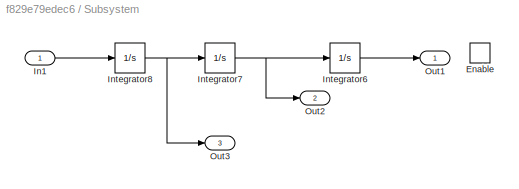
BLOCK [SubSystem] Subsystem
  Commented = on
BLOCK [EnablePort] Subsystem/Enable
BLOCK [Inport] Subsystem/In1
BLOCK [Integrator] Subsystem/Integrator6
  InitialCondition = Udc
BLOCK [Integrator] Subsystem/Integrator7
  InitialCondition = It/C
BLOCK [Integrator] Subsystem/Integrator8
BLOCK [Outport] Subsystem/Out1
BLOCK [Outport] Subsystem/Out2
  Port = 2
BLOCK [Outport] Subsystem/Out3
  Port = 3
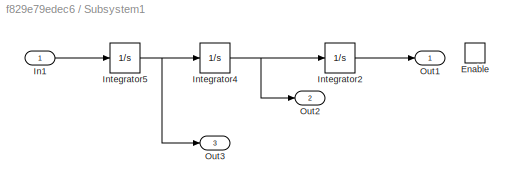
BLOCK [SubSystem] Subsystem1
  Commented = on
BLOCK [EnablePort] Subsystem1/Enable
BLOCK [Inport] Subsystem1/In1
BLOCK [Integrator] Subsystem1/Integrator2
  InitialCondition = Udc
BLOCK [Integrator] Subsystem1/Integrator4
  InitialCondition = It/C
BLOCK [Integrator] Subsystem1/Integrator5
BLOCK [Outport] Subsystem1/Out1
BLOCK [Outport] Subsystem1/Out2
  Port = 2
BLOCK [Outport] Subsystem1/Out3
  Port = 3
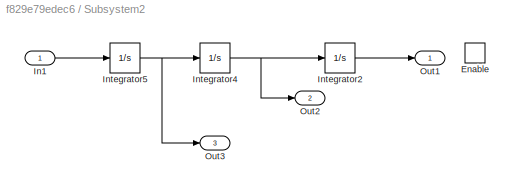
BLOCK [SubSystem] Subsystem2
  Commented = on
BLOCK [EnablePort] Subsystem2/Enable
BLOCK [Inport] Subsystem2/In1
BLOCK [Integrator] Subsystem2/Integrator2
  InitialCondition = Ud
BLOCK [Integrator] Subsystem2/Integrator4
  InitialCondition = It/C
BLOCK [Integrator] Subsystem2/Integrator5
BLOCK [Outport] Subsystem2/Out1
BLOCK [Outport] Subsystem2/Out2
  Port = 2
BLOCK [Outport] Subsystem2/Out3
  Port = 3
BLOCK [ToWorkspace] To Workspace
  Commented = on
  FixptAsFi = on
  MaxDataPoints = inf
  SampleTime = -1
  SaveFormat = Structure With Time
  VariableName = lc
BLOCK [ToWorkspace] To Workspace1
  Commented = on
  FixptAsFi = on
  MaxDataPoints = inf
  SampleTime = -1
  SaveFormat = Structure With Time
  VariableName = lclr
BLOCK [Reference] Voltage Measurement1  REF=spsVoltageMeasurementLib/Voltage Measurement
  Commented = on
  LibrarySourceBlock = sps_lib/Sensors and Measurements/Voltage Measurement
  SourceBlock = spsVoltageMeasurementLib/Voltage Measurement
  SourceType = Voltage Measurement
  UserDataPersistent = on
BLOCK [Reference] Voltage Measurement10  REF=spsVoltageMeasurementLib/Voltage Measurement
  Commented = on
  LibrarySourceBlock = sps_lib/Sensors and Measurements/Voltage Measurement
  SourceBlock = spsVoltageMeasurementLib/Voltage Measurement
  SourceType = Voltage Measurement
  UserDataPersistent = on
BLOCK [Reference] Voltage Measurement11  REF=spsVoltageMeasurementLib/Voltage Measurement
  Commented = on
  LibrarySourceBlock = sps_lib/Sensors and Measurements/Voltage Measurement
  SourceBlock = spsVoltageMeasurementLib/Voltage Measurement
  SourceType = Voltage Measurement
  UserDataPersistent = on
BLOCK [Reference] Voltage Measurement12  REF=spsVoltageMeasurementLib/Voltage Measurement
  Commented = on
  LibrarySourceBlock = sps_lib/Sensors and Measurements/Voltage Measurement
  SourceBlock = spsVoltageMeasurementLib/Voltage Measurement
  SourceType = Voltage Measurement
  UserDataPersistent = on
BLOCK [Reference] Voltage Measurement13  REF=spsVoltageMeasurementLib/Voltage Measurement
  Commented = on
  LibrarySourceBlock = sps_lib/Sensors and Measurements/Voltage Measurement
  SourceBlock = spsVoltageMeasurementLib/Voltage Measurement
  SourceType = Voltage Measurement
  UserDataPersistent = on
BLOCK [Reference] Voltage Measurement14  REF=spsVoltageMeasurementLib/Voltage Measurement
  Commented = on
  LibrarySourceBlock = sps_lib/Sensors and Measurements/Voltage Measurement
  SourceBlock = spsVoltageMeasurementLib/Voltage Measurement
  SourceType = Voltage Measurement
  UserDataPersistent = on
BLOCK [Reference] Voltage Measurement15  REF=spsVoltageMeasurementLib/Voltage Measurement
  Commented = on
  LibrarySourceBlock = sps_lib/Sensors and Measurements/Voltage Measurement
  SourceBlock = spsVoltageMeasurementLib/Voltage Measurement
  SourceType = Voltage Measurement
  UserDataPersistent = on
BLOCK [Reference] Voltage Measurement16  REF=spsVoltageMeasurementLib/Voltage Measurement
  Commented = on
  LibrarySourceBlock = sps_lib/Sensors and Measurements/Voltage Measurement
  SourceBlock = spsVoltageMeasurementLib/Voltage Measurement
  SourceType = Voltage Measurement
  UserDataPersistent = on
BLOCK [Reference] Voltage Measurement17  REF=spsVoltageMeasurementLib/Voltage Measurement
  Commented = on
  LibrarySourceBlock = sps_lib/Sensors and Measurements/Voltage Measurement
  SourceBlock = spsVoltageMeasurementLib/Voltage Measurement
  SourceType = Voltage Measurement
  UserDataPersistent = on
BLOCK [Reference] Voltage Measurement18  REF=spsVoltageMeasurementLib/Voltage Measurement
  Commented = on
  LibrarySourceBlock = sps_lib/Sensors and Measurements/Voltage Measurement
  SourceBlock = spsVoltageMeasurementLib/Voltage Measurement
  SourceType = Voltage Measurement
  UserDataPersistent = on
BLOCK [Reference] Voltage Measurement19  REF=spsVoltageMeasurementLib/Voltage Measurement
  Commented = on
  LibrarySourceBlock = sps_lib/Sensors and Measurements/Voltage Measurement
  SourceBlock = spsVoltageMeasurementLib/Voltage Measurement
  SourceType = Voltage Measurement
  UserDataPersistent = on
BLOCK [Reference] Voltage Measurement2  REF=spsVoltageMeasurementLib/Voltage Measurement
  Commented = on
  LibrarySourceBlock = sps_lib/Sensors and Measurements/Voltage Measurement
  SourceBlock = spsVoltageMeasurementLib/Voltage Measurement
  SourceType = Voltage Measurement
  UserDataPersistent = on
BLOCK [Reference] Voltage Measurement20  REF=spsVoltageMeasurementLib/Voltage Measurement
  Commented = on
  LibrarySourceBlock = sps_lib/Sensors and Measurements/Voltage Measurement
  SourceBlock = spsVoltageMeasurementLib/Voltage Measurement
  SourceType = Voltage Measurement
  UserDataPersistent = on
BLOCK [Reference] Voltage Measurement21  REF=spsVoltageMeasurementLib/Voltage Measurement
  Commented = on
  LibrarySourceBlock = sps_lib/Sensors and Measurements/Voltage Measurement
  SourceBlock = spsVoltageMeasurementLib/Voltage Measurement
  SourceType = Voltage Measurement
  UserDataPersistent = on
BLOCK [Reference] Voltage Measurement22  REF=spsVoltageMeasurementLib/Voltage Measurement
  Commented = on
  LibrarySourceBlock = sps_lib/Sensors and Measurements/Voltage Measurement
  SourceBlock = spsVoltageMeasurementLib/Voltage Measurement
  SourceType = Voltage Measurement
  UserDataPersistent = on
BLOCK [Reference] Voltage Measurement23  REF=spsVoltageMeasurementLib/Voltage Measurement
  Commented = on
  LibrarySourceBlock = sps_lib/Sensors and Measurements/Voltage Measurement
  SourceBlock = spsVoltageMeasurementLib/Voltage Measurement
  SourceType = Voltage Measurement
  UserDataPersistent = on
BLOCK [Reference] Voltage Measurement24  REF=spsVoltageMeasurementLib/Voltage Measurement
  Commented = on
  LibrarySourceBlock = sps_lib/Sensors and Measurements/Voltage Measurement
  SourceBlock = spsVoltageMeasurementLib/Voltage Measurement
  SourceType = Voltage Measurement
  UserDataPersistent = on
BLOCK [Reference] Voltage Measurement25  REF=spsVoltageMeasurementLib/Voltage Measurement
  Commented = on
  LibrarySourceBlock = sps_lib/Sensors and Measurements/Voltage Measurement
  SourceBlock = spsVoltageMeasurementLib/Voltage Measurement
  SourceType = Voltage Measurement
  UserDataPersistent = on
BLOCK [Reference] Voltage Measurement26  REF=spsVoltageMeasurementLib/Voltage Measurement
  Commented = on
  LibrarySourceBlock = sps_lib/Sensors and Measurements/Voltage Measurement
  SourceBlock = spsVoltageMeasurementLib/Voltage Measurement
  SourceType = Voltage Measurement
  UserDataPersistent = on
BLOCK [Reference] Voltage Measurement27  REF=spsVoltageMeasurementLib/Voltage Measurement
  Commented = on
  LibrarySourceBlock = sps_lib/Sensors and Measurements/Voltage Measurement
  SourceBlock = spsVoltageMeasurementLib/Voltage Measurement
  SourceType = Voltage Measurement
  UserDataPersistent = on
BLOCK [Reference] Voltage Measurement28  REF=spsVoltageMeasurementLib/Voltage Measurement
  LibrarySourceBlock = sps_lib/Sensors and Measurements/Voltage Measurement
  SourceBlock = spsVoltageMeasurementLib/Voltage Measurement
  SourceType = Voltage Measurement
  UserDataPersistent = on
BLOCK [Reference] Voltage Measurement29  REF=spsVoltageMeasurementLib/Voltage Measurement
  LibrarySourceBlock = sps_lib/Sensors and Measurements/Voltage Measurement
  SourceBlock = spsVoltageMeasurementLib/Voltage Measurement
  SourceType = Voltage Measurement
  UserDataPersistent = on
BLOCK [Reference] Voltage Measurement3  REF=spsVoltageMeasurementLib/Voltage Measurement
  Commented = on
  LibrarySourceBlock = sps_lib/Sensors and Measurements/Voltage Measurement
  SourceBlock = spsVoltageMeasurementLib/Voltage Measurement
  SourceType = Voltage Measurement
  UserDataPersistent = on
BLOCK [Reference] Voltage Measurement30  REF=spsVoltageMeasurementLib/Voltage Measurement
  LibrarySourceBlock = sps_lib/Sensors and Measurements/Voltage Measurement
  SourceBlock = spsVoltageMeasurementLib/Voltage Measurement
  SourceType = Voltage Measurement
  UserDataPersistent = on
BLOCK [Reference] Voltage Measurement31  REF=spsVoltageMeasurementLib/Voltage Measurement
  LibrarySourceBlock = sps_lib/Sensors and Measurements/Voltage Measurement
  SourceBlock = spsVoltageMeasurementLib/Voltage Measurement
  SourceType = Voltage Measurement
  UserDataPersistent = on
BLOCK [Reference] Voltage Measurement32  REF=spsVoltageMeasurementLib/Voltage Measurement
  LibrarySourceBlock = sps_lib/Sensors and Measurements/Voltage Measurement
  SourceBlock = spsVoltageMeasurementLib/Voltage Measurement
  SourceType = Voltage Measurement
  UserDataPersistent = on
BLOCK [Reference] Voltage Measurement33  REF=spsVoltageMeasurementLib/Voltage Measurement
  Commented = on
  LibrarySourceBlock = sps_lib/Sensors and Measurements/Voltage Measurement
  SourceBlock = spsVoltageMeasurementLib/Voltage Measurement
  SourceType = Voltage Measurement
  UserDataPersistent = on
BLOCK [Reference] Voltage Measurement34  REF=spsVoltageMeasurementLib/Voltage Measurement
  LibrarySourceBlock = sps_lib/Sensors and Measurements/Voltage Measurement
  SourceBlock = spsVoltageMeasurementLib/Voltage Measurement
  SourceType = Voltage Measurement
  UserDataPersistent = on
BLOCK [Reference] Voltage Measurement35  REF=spsVoltageMeasurementLib/Voltage Measurement
  LibrarySourceBlock = sps_lib/Sensors and Measurements/Voltage Measurement
  SourceBlock = spsVoltageMeasurementLib/Voltage Measurement
  SourceType = Voltage Measurement
  UserDataPersistent = on
BLOCK [Reference] Voltage Measurement36  REF=spsVoltageMeasurementLib/Voltage Measurement
  LibrarySourceBlock = sps_lib/Sensors and Measurements/Voltage Measurement
  SourceBlock = spsVoltageMeasurementLib/Voltage Measurement
  SourceType = Voltage Measurement
  UserDataPersistent = on
BLOCK [Reference] Voltage Measurement37  REF=spsVoltageMeasurementLib/Voltage Measurement
  LibrarySourceBlock = sps_lib/Sensors and Measurements/Voltage Measurement
  SourceBlock = spsVoltageMeasurementLib/Voltage Measurement
  SourceType = Voltage Measurement
  UserDataPersistent = on
BLOCK [Reference] Voltage Measurement38  REF=spsVoltageMeasurementLib/Voltage Measurement
  LibrarySourceBlock = sps_lib/Sensors and Measurements/Voltage Measurement
  SourceBlock = spsVoltageMeasurementLib/Voltage Measurement
  SourceType = Voltage Measurement
  UserDataPersistent = on
BLOCK [Reference] Voltage Measurement4  REF=spsVoltageMeasurementLib/Voltage Measurement
  Commented = on
  LibrarySourceBlock = sps_lib/Sensors and Measurements/Voltage Measurement
  SourceBlock = spsVoltageMeasurementLib/Voltage Measurement
  SourceType = Voltage Measurement
  UserDataPersistent = on
BLOCK [Reference] Voltage Measurement5  REF=spsVoltageMeasurementLib/Voltage Measurement
  Commented = on
  LibrarySourceBlock = sps_lib/Sensors and Measurements/Voltage Measurement
  SourceBlock = spsVoltageMeasurementLib/Voltage Measurement
  SourceType = Voltage Measurement
  UserDataPersistent = on
BLOCK [Reference] Voltage Measurement6  REF=spsVoltageMeasurementLib/Voltage Measurement
  Commented = on
  LibrarySourceBlock = sps_lib/Sensors and Measurements/Voltage Measurement
  SourceBlock = spsVoltageMeasurementLib/Voltage Measurement
  SourceType = Voltage Measurement
  UserDataPersistent = on
BLOCK [Reference] Voltage Measurement7  REF=spsVoltageMeasurementLib/Voltage Measurement
  Commented = on
  LibrarySourceBlock = sps_lib/Sensors and Measurements/Voltage Measurement
  SourceBlock = spsVoltageMeasurementLib/Voltage Measurement
  SourceType = Voltage Measurement
  UserDataPersistent = on
BLOCK [Reference] Voltage Measurement8  REF=spsVoltageMeasurementLib/Voltage Measurement
  Commented = on
  LibrarySourceBlock = sps_lib/Sensors and Measurements/Voltage Measurement
  SourceBlock = spsVoltageMeasurementLib/Voltage Measurement
  SourceType = Voltage Measurement
  UserDataPersistent = on
BLOCK [Reference] Voltage Measurement9  REF=spsVoltageMeasurementLib/Voltage Measurement
  Commented = on
  LibrarySourceBlock = sps_lib/Sensors and Measurements/Voltage Measurement
  SourceBlock = spsVoltageMeasurementLib/Voltage Measurement
  SourceType = Voltage Measurement
  UserDataPersistent = on
BLOCK [Reference] powergui  REF=sps_lib/powergui
  LibrarySourceBlock = sps_lib/powergui
  Priority = 1
  SourceBlock = sps_lib/powergui
  SourceType = PSB option menu block
LINE Add10:1 -> Goto3:1
LINE Add11:1 -> Scope59:1
LINE Add1:1 -> Goto:1
LINE Add2:1 -> Add3:2
LINE Add3:1 -> Goto1:1
LINE Add4:1 -> Add5:2
LINE Add5:1 -> Goto2:1
LINE Add6:1 -> Display10:1
LINE Add7:1 -> Display11:1
LINE Add8:1 -> Display12:1
LINE Add9:1 -> Add10:2
LINE Add:1 -> Add1:2
LINE Constant10:1 -> Divide7:2
LINE Constant11:1 -> Divide9:2
LINE Constant12:1 -> Divide8:2
LINE Constant13:1 -> Divide10:2
NET Constant14:1 -> Add6:2, Add7:2
LINE Constant15:1 -> Add8:2
LINE Constant16:1 -> Divide11:1
LINE Constant17:1 -> Divide11:2
LINE Constant18:1 -> Divide13:2
LINE Constant19:1 -> Divide12:2
LINE Constant1:1 -> Divide:2
LINE Constant20:1 -> Divide14:2
LINE Constant21:1 -> Add11:2
LINE Constant2:1 -> Divide2:2
LINE Constant3:1 -> Divide1:2
LINE Constant4:1 -> Divide3:1
LINE Constant5:1 -> Divide3:2
LINE Constant6:1 -> Divide5:2
LINE Constant7:1 -> Divide4:2
LINE Constant8:1 -> Divide6:2
LINE Constant9:1 -> Divide7:1
LINE Constant:1 -> Divide:1
LINE Current Measurement1:1 -> Scope10:1
LINE Current Measurement2:1 -> Scope13:1
LINE Current Measurement3:1 -> Scope17:1
LINE Current Measurement4:1 -> Scope1:1
LINE Current Measurement5:1 -> Scope22:1
LINE Current Measurement6:1 -> Scope30:1
LINE Current Measurement7:1 -> Scope36:1
LINE Current Measurement8:1 -> Scope42:1
LINE Current Measurement9:1 -> Scope50:1
LINE Delay10:1 -> Max10:2
LINE Delay1:1 -> Max1:2
LINE Delay2:1 -> Max2:2
LINE Delay3:1 -> Max3:2
LINE Delay4:1 -> Max4:2
LINE Delay5:1 -> Max5:2
LINE Delay6:1 -> Max6:2
LINE Delay7:1 -> Max7:2
LINE Delay8:1 -> Max8:2
LINE Delay9:1 -> Max9:2
LINE Divide10:1 -> Add4:3
LINE Divide11:1 -> Add10:1
LINE Divide12:1 -> Add9:1
LINE Divide13:1 -> Add9:2
LINE Divide14:1 -> Add9:3
LINE Divide1:1 -> Add:1
LINE Divide2:1 -> Add:2
LINE Divide3:1 -> Add3:1
LINE Divide4:1 -> Add2:1
LINE Divide5:1 -> Add2:2
LINE Divide6:1 -> Add2:3
LINE Divide7:1 -> Add5:1
LINE Divide8:1 -> Add4:1
LINE Divide9:1 -> Add4:2
LINE Divide:1 -> Add1:1
LINE From1:1 -> Subsystem1:1
LINE From2:1 -> Subsystem:1
LINE From3:1 -> Subsystem2:1
LINE From:1 -> Integrator3:1
NET Integrator1:1 -> Divide2:1, Scope5:1
NET Integrator3:1 -> Divide1:1, Integrator1:1
NET Max10:1 -> Add8:1, Delay10:1, Display13:1
NET Max1:1 -> Delay1:1, Display1:1
NET Max2:1 -> Delay2:1, Display2:1
NET Max3:1 -> Delay3:1, Display3:1
NET Max4:1 -> Delay4:1, Display4:1
NET Max5:1 -> Delay5:1, Display5:1
NET Max6:1 -> Delay6:1, Display6:1
NET Max7:1 -> Delay7:1, Display7:1
NET Max8:1 -> Add7:1, Delay8:1, Display8:1
NET Max9:1 -> Add6:1, Delay9:1, Display9:1
LINE Step10:1 -> Controlled Current Source5:1
LINE Step11:1 -> Subsystem:enable
LINE Step12:1 -> Subsystem1:enable
LINE Step13:1 -> Controlled Current Source6:1
LINE Step14:1 -> IGBT//Diode6:1
LINE Step15:1 -> Controlled Current Source7:1
LINE Step16:1 -> IGBT//Diode7:1
LINE Step17:1 -> Controlled Current Source8:1
LINE Step19:1 -> Controlled Current Source9:1
LINE Step1:1 -> IGBT//Diode4:1
LINE Step20:1 -> Subsystem2:enable
LINE Step22:1 -> IGBT//Diode8:1
LINE Step23:1 -> IGBT//Diode9:1
LINE Step2:1 -> IGBT//Diode1:1
LINE Step3:1 -> Controlled Current Source4:1
LINE Step4:1 -> IGBT//Diode2:1
LINE Step5:1 -> Controlled Current Source2:1
LINE Step6:1 -> IGBT//Diode3:1
LINE Step7:1 -> Controlled Current Source3:1
LINE Step8:1 -> IGBT//Diode5:1
LINE Step9:1 -> Controlled Current Source1:1
LINE Subsystem/In1:1 -> Subsystem/Integrator8:1
LINE Subsystem/Integrator6:1 -> Subsystem/Out1:1
NET Subsystem/Integrator7:1 -> Subsystem/Integrator6:1, Subsystem/Out2:1
NET Subsystem/Integrator8:1 -> Subsystem/Integrator7:1, Subsystem/Out3:1
LINE Subsystem1/In1:1 -> Subsystem1/Integrator5:1
LINE Subsystem1/Integrator2:1 -> Subsystem1/Out1:1
NET Subsystem1/Integrator4:1 -> Subsystem1/Integrator2:1, Subsystem1/Out2:1
NET Subsystem1/Integrator5:1 -> Subsystem1/Integrator4:1, Subsystem1/Out3:1
NET Subsystem1:1 -> Divide5:1, Scope12:4, Scope7:1
LINE Subsystem1:2 -> Divide4:1
LINE Subsystem1:3 -> Divide6:1
LINE Subsystem2/In1:1 -> Subsystem2/Integrator5:1
LINE Subsystem2/Integrator2:1 -> Subsystem2/Out1:1
NET Subsystem2/Integrator4:1 -> Subsystem2/Integrator2:1, Subsystem2/Out2:1
NET Subsystem2/Integrator5:1 -> Subsystem2/Integrator4:1, Subsystem2/Out3:1
NET Subsystem2:1 -> Add11:1, Divide13:1, Scope56:1, Scope57:1, Scope58:1
LINE Subsystem2:2 -> Divide12:1
LINE Subsystem2:3 -> Divide14:1
NET Subsystem:1 -> Divide9:1, Max6:1, Scope11:1, Scope12:2, Scope29:2
LINE Subsystem:2 -> Divide8:1
LINE Subsystem:3 -> Divide10:1
LINE Voltage Measurement10:1 -> Scope19:1
LINE Voltage Measurement11:1 -> Scope20:1
LINE Voltage Measurement12:1 -> Scope21:1
NET Voltage Measurement13:1 -> Max5:1, Scope23:1, Scope25:1, Scope29:1, Scope4:1, To Workspace:1
LINE Voltage Measurement14:1 -> Scope24:1
LINE Voltage Measurement15:1 -> Scope26:1
LINE Voltage Measurement16:1 -> Scope27:1
LINE Voltage Measurement17:1 -> Scope28:1
NET Voltage Measurement18:1 -> Max7:1, Scope31:1
LINE Voltage Measurement19:1 -> Scope32:1
NET Voltage Measurement1:1 -> Max4:1, Scope2:1, Scope4:2, To Workspace1:1
LINE Voltage Measurement20:1 -> Scope33:1
LINE Voltage Measurement21:1 -> Scope34:1
LINE Voltage Measurement22:1 -> Scope35:1
NET Voltage Measurement23:1 -> Max8:1, Scope37:1
NET Voltage Measurement24:1 -> Scope38:1, Scope:2
LINE Voltage Measurement25:1 -> Scope39:1
LINE Voltage Measurement26:1 -> Scope40:1
LINE Voltage Measurement27:1 -> Scope41:1
NET Voltage Measurement28:1 -> Max9:1, Scope43:1
NET Voltage Measurement29:1 -> Scope44:1, Scope49:2, Scope58:2, Scope:1
LINE Voltage Measurement2:1 -> Scope3:1
LINE Voltage Measurement30:1 -> Scope45:1
LINE Voltage Measurement31:1 -> Scope46:1
LINE Voltage Measurement32:1 -> Scope47:1
LINE Voltage Measurement33:1 -> Scope48:1
NET Voltage Measurement34:1 -> Max10:1, Scope51:1
NET Voltage Measurement35:1 -> Scope49:1, Scope52:1, Scope57:2
LINE Voltage Measurement36:1 -> Scope53:1
LINE Voltage Measurement37:1 -> Scope54:1
LINE Voltage Measurement38:1 -> Scope55:1
NET Voltage Measurement3:1 -> Max1:1, Scope6:1
LINE Voltage Measurement4:1 -> Scope8:1
LINE Voltage Measurement5:1 -> Scope9:1
NET Voltage Measurement6:1 -> Max2:1, Scope14:1
LINE Voltage Measurement7:1 -> Scope15:1
LINE Voltage Measurement8:1 -> Scope16:1
NET Voltage Measurement9:1 -> Max3:1, Scope18:1
PNET net1: Controlled Current Source1:LConn1 -- Diode3:RConn1 -- IGBT//Diode1:RConn1 -- Voltage Measurement5:LConn2
PNET net2: Controlled Current Source1:RConn1 -- DC Voltage Source2:LConn1 -- Diode3:LConn1 -- Series RLC Branch7:RConn1 -- Voltage Measurement3:LConn2
PNET net3: Controlled Current Source2:LConn1 -- Diode5:RConn1 -- IGBT//Diode2:RConn1 -- Voltage Measurement8:LConn2
PNET net4: Controlled Current Source2:RConn1 -- Current Measurement2:LConn1 -- Diode4:LConn1 -- Series RLC Branch10:RConn1 -- Voltage Measurement6:LConn1 -- Voltage Measurement7:LConn2 -- Voltage Measurement8:LConn1
PNET net5: Controlled Current Source3:LConn1 -- Diode7:RConn1 -- IGBT//Diode3:RConn1 -- Voltage Measurement11:LConn2
PNET net6: Controlled Current Source3:RConn1 -- Current Measurement3:LConn1 -- Diode6:LConn1 -- Series RLC Branch13:RConn1 -- Voltage Measurement10:LConn2 -- Voltage Measurement11:LConn1 -- Voltage Measurement9:LConn1
PNET net7: Controlled Current Source4:LConn1 -- Diode8:RConn1 -- IGBT//Diode4:RConn1 -- Voltage Measurement12:LConn2
PNET net8: Controlled Current Source4:RConn1 -- Diode8:LConn1 -- Series RLC Branch14:RConn1 -- Series RLC Branch15:RConn1 -- Voltage Measurement1:LConn2
PNET net9: Controlled Current Source5:LConn1 -- Diode10:RConn1 -- IGBT//Diode5:RConn1 -- Voltage Measurement14:LConn2
PNET net10: Controlled Current Source5:RConn1 -- Diode10:LConn1 -- Series RLC Branch17:RConn1 -- Series RLC Branch18:RConn1 -- Voltage Measurement13:LConn2 -- Voltage Measurement16:LConn2
PNET net11: Controlled Current Source6:LConn1 -- Diode11:RConn1 -- IGBT//Diode6:RConn1 -- Voltage Measurement19:LConn2
PNET net12: Controlled Current Source6:RConn1 -- Diode11:LConn1 -- Series RLC Branch25:RConn1 -- Series RLC Branch8:RConn1 -- Voltage Measurement18:LConn2 -- Voltage Measurement21:LConn2
PNET net13: Controlled Current Source7:LConn1 -- Diode13:RConn1 -- IGBT//Diode7:RConn1 -- Voltage Measurement24:LConn2 -- Voltage Measurement33:LConn1
PNET net14: Controlled Current Source7:RConn1 -- Diode13:LConn1 -- Series RLC Branch30:RConn1 -- Series RLC Branch31:RConn1 -- Voltage Measurement23:LConn2 -- Voltage Measurement26:LConn2 -- Voltage Measurement33:LConn2
PNET net15: Controlled Current Source8:LConn1 -- Diode15:RConn1 -- IGBT//Diode8:RConn1 -- Voltage Measurement29:LConn2
PNET net16: Controlled Current Source8:RConn1 -- Diode15:LConn1 -- Series RLC Branch36:RConn1 -- Series RLC Branch37:RConn1 -- Voltage Measurement28:LConn2 -- Voltage Measurement31:LConn2
PNET net17: Controlled Current Source9:LConn1 -- Diode17:RConn1 -- IGBT//Diode9:RConn1 -- Voltage Measurement35:LConn2
PNET net18: Controlled Current Source9:RConn1 -- Diode17:LConn1 -- Series RLC Branch41:RConn1 -- Series RLC Branch42:RConn1 -- Voltage Measurement34:LConn2 -- Voltage Measurement37:LConn2
PNET net19: Current Measurement1:LConn1 -- Diode2:LConn1 -- Series RLC Branch21:RConn1 -- Voltage Measurement3:LConn1 -- Voltage Measurement4:LConn2 -- Voltage Measurement5:LConn1
PLINE Current Measurement1:RConn1 -- IGBT//Diode1:LConn1
PLINE Current Measurement2:RConn1 -- IGBT//Diode2:LConn1
PLINE Current Measurement3:RConn1 -- IGBT//Diode3:LConn1
PNET net20: Current Measurement4:LConn1 -- Diode1:LConn1 -- Series RLC Branch1:RConn1 -- Voltage Measurement12:LConn1 -- Voltage Measurement1:LConn1 -- Voltage Measurement2:LConn2
PLINE Current Measurement4:RConn1 -- IGBT//Diode4:LConn1
PNET net21: Current Measurement5:LConn1 -- Diode9:LConn1 -- Series RLC Branch16:RConn1 -- Voltage Measurement13:LConn1 -- Voltage Measurement14:LConn1 -- Voltage Measurement15:LConn2 -- Voltage Measurement17:LConn1
PLINE Current Measurement5:RConn1 -- IGBT//Diode5:LConn1
PNET net22: Current Measurement6:LConn1 -- Diode12:LConn1 -- Series RLC Branch3:RConn1 -- Voltage Measurement18:LConn1 -- Voltage Measurement19:LConn1 -- Voltage Measurement20:LConn2 -- Voltage Measurement22:LConn1
PLINE Current Measurement6:RConn1 -- IGBT//Diode6:LConn1
PNET net23: Current Measurement7:LConn1 -- Diode14:LConn1 -- Series RLC Branch27:RConn1 -- Voltage Measurement23:LConn1 -- Voltage Measurement24:LConn1 -- Voltage Measurement25:LConn2 -- Voltage Measurement27:LConn1
PLINE Current Measurement7:RConn1 -- IGBT//Diode7:LConn1
PNET net24: Current Measurement8:LConn1 -- Diode16:LConn1 -- Series RLC Branch35:RConn1 -- Voltage Measurement28:LConn1 -- Voltage Measurement29:LConn1 -- Voltage Measurement30:LConn2 -- Voltage Measurement32:LConn1
PLINE Current Measurement8:RConn1 -- IGBT//Diode8:LConn1
PNET net25: Current Measurement9:LConn1 -- Diode18:LConn1 -- Series RLC Branch39:RConn1 -- Voltage Measurement34:LConn1 -- Voltage Measurement35:LConn1 -- Voltage Measurement36:LConn2 -- Voltage Measurement38:LConn1
PLINE Current Measurement9:RConn1 -- IGBT//Diode9:LConn1
PLINE DC Voltage Source1:LConn1 -- Series RLC Branch15:LConn1
PLINE DC Voltage Source1:RConn1 -- Series RLC Branch2:LConn1
PLINE DC Voltage Source2:RConn1 -- Series RLC Branch22:LConn1
PNET net26: DC Voltage Source3:LConn1 -- Diode5:LConn1 -- Series RLC Branch9:RConn1 -- Voltage Measurement6:LConn2
PNET net27: DC Voltage Source3:RConn1 -- Series RLC Branch10:LConn1 -- Series RLC Branch5:LConn1 -- Voltage Measurement7:LConn1
PNET net28: DC Voltage Source4:LConn1 -- Diode7:LConn1 -- Series RLC Branch12:RConn1 -- Voltage Measurement9:LConn2
PNET net29: DC Voltage Source4:RConn1 -- Series RLC Branch11:LConn1 -- Series RLC Branch13:LConn1 -- Voltage Measurement10:LConn1
PLINE DC Voltage Source5:LConn1 -- Series RLC Branch18:LConn1
PLINE DC Voltage Source5:RConn1 -- Series RLC Branch19:LConn1
PLINE DC Voltage Source6:LConn1 -- Series RLC Branch25:LConn1
PLINE DC Voltage Source6:RConn1 -- Series RLC Branch26:LConn1
PLINE DC Voltage Source7:LConn1 -- Series RLC Branch31:LConn1
PLINE DC Voltage Source7:RConn1 -- Series RLC Branch32:LConn1
PLINE DC Voltage Source8:LConn1 -- Series RLC Branch37:LConn1
PLINE DC Voltage Source8:RConn1 -- Series RLC Branch38:LConn1
PLINE DC Voltage Source9:LConn1 -- Series RLC Branch42:LConn1
PLINE DC Voltage Source9:RConn1 -- Series RLC Branch43:LConn1
PNET net30: Diode12:RConn1 -- Series RLC Branch28:RConn1 -- Series RLC Branch8:LConn1 -- Voltage Measurement21:LConn1 -- Voltage Measurement22:LConn2
PNET net31: Diode14:RConn1 -- Series RLC Branch30:LConn1 -- Series RLC Branch34:RConn1 -- Voltage Measurement26:LConn1 -- Voltage Measurement27:LConn2
PNET net32: Diode16:RConn1 -- Series RLC Branch36:LConn1 -- Series RLC Branch40:RConn1 -- Voltage Measurement31:LConn1 -- Voltage Measurement32:LConn2
PLINE Diode18:RConn1 -- Series RLC Branch46:LConn1
PNET net33: Diode1:RConn1 -- Series RLC Branch14:LConn1 -- Series RLC Branch4:RConn1
PNET net34: Diode2:RConn1 -- Series RLC Branch6:RConn1 -- Series RLC Branch7:LConn1
PNET net35: Diode4:RConn1 -- Series RLC Branch5:RConn1 -- Series RLC Branch9:LConn1
PNET net36: Diode6:RConn1 -- Series RLC Branch11:RConn1 -- Series RLC Branch12:LConn1
PNET net37: Diode9:RConn1 -- Series RLC Branch17:LConn1 -- Series RLC Branch24:RConn1 -- Voltage Measurement16:LConn1 -- Voltage Measurement17:LConn2
PNET net38: Series RLC Branch16:LConn1 -- Series RLC Branch19:RConn1 -- Series RLC Branch20:LConn1 -- Voltage Measurement15:LConn1
PNET net39: Series RLC Branch1:LConn1 -- Series RLC Branch2:RConn1 -- Series RLC Branch4:LConn1 -- Voltage Measurement2:LConn1
PLINE Series RLC Branch20:RConn1 -- Series RLC Branch24:LConn1
PNET net40: Series RLC Branch21:LConn1 -- Series RLC Branch22:RConn1 -- Series RLC Branch23:LConn1 -- Voltage Measurement4:LConn1
PLINE Series RLC Branch23:RConn1 -- Series RLC Branch6:LConn1
PNET net41: Series RLC Branch26:RConn1 -- Series RLC Branch28:LConn1 -- Series RLC Branch3:LConn1 -- Voltage Measurement20:LConn1
PNET net42: Series RLC Branch27:LConn1 -- Series RLC Branch32:RConn1 -- Series RLC Branch33:LConn1 -- Voltage Measurement25:LConn1
PLINE Series RLC Branch33:RConn1 -- Series RLC Branch34:LConn1
PNET net43: Series RLC Branch35:LConn1 -- Series RLC Branch38:RConn1 -- Series RLC Branch47:LConn1 -- Voltage Measurement30:LConn1
PNET net44: Series RLC Branch39:LConn1 -- Series RLC Branch43:RConn1 -- Series RLC Branch45:LConn1 -- Voltage Measurement36:LConn1
PLINE Series RLC Branch40:LConn1 -- Series RLC Branch47:RConn1
PNET net45: Series RLC Branch41:LConn1 -- Series RLC Branch44:RConn1 -- Series RLC Branch46:RConn1 -- Voltage Measurement37:LConn1 -- Voltage Measurement38:LConn2
PLINE Series RLC Branch44:LConn1 -- Series RLC Branch45:RConn1
note: NET lines group one-source signal fan-out (src -> all destinations, sorted); 1:1 wires keep LINE; PNET lines group multi-terminal physical nets as a canonical sorted terminal list (undirected conserving connections); 2-terminal nets keep the pairwise PLINE form
